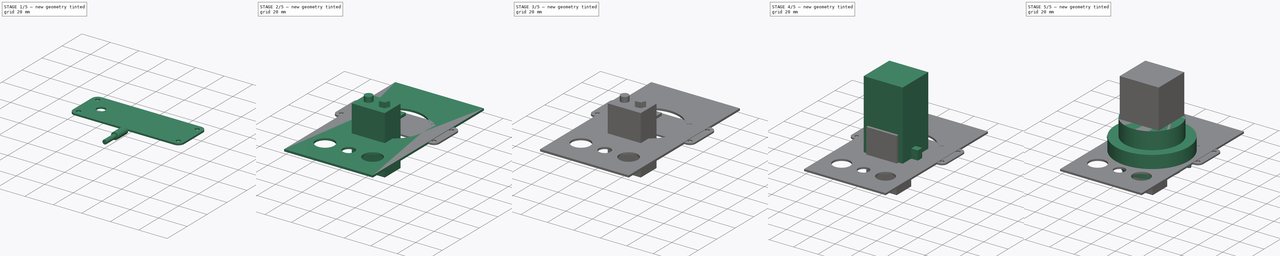
[diagram: build sequence overview — one tinted view per stage of 5, left to right]
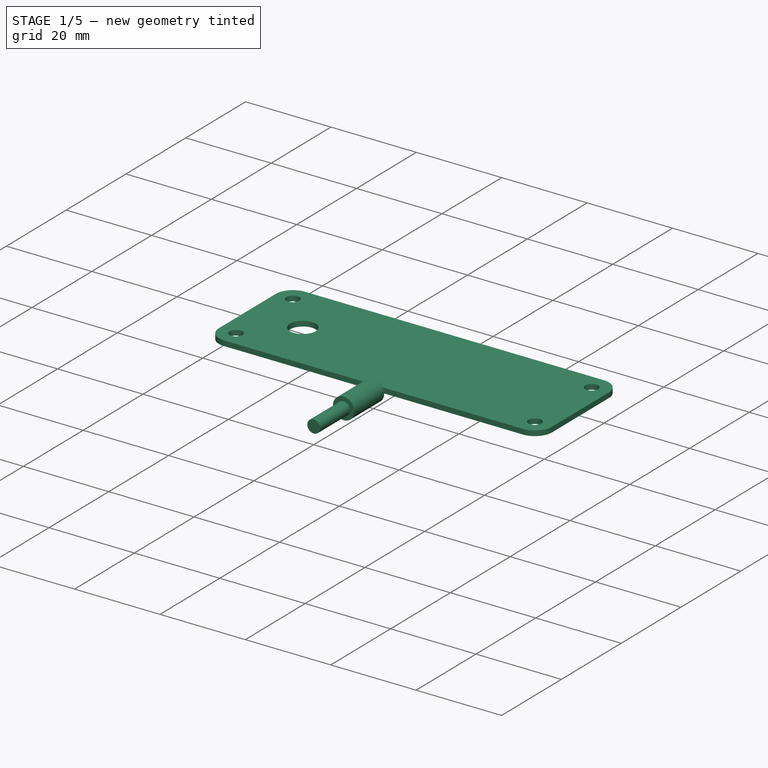
[diagram: stage 1 of 5 — iso view after this stage's code; geometry added in this stage tinted green]
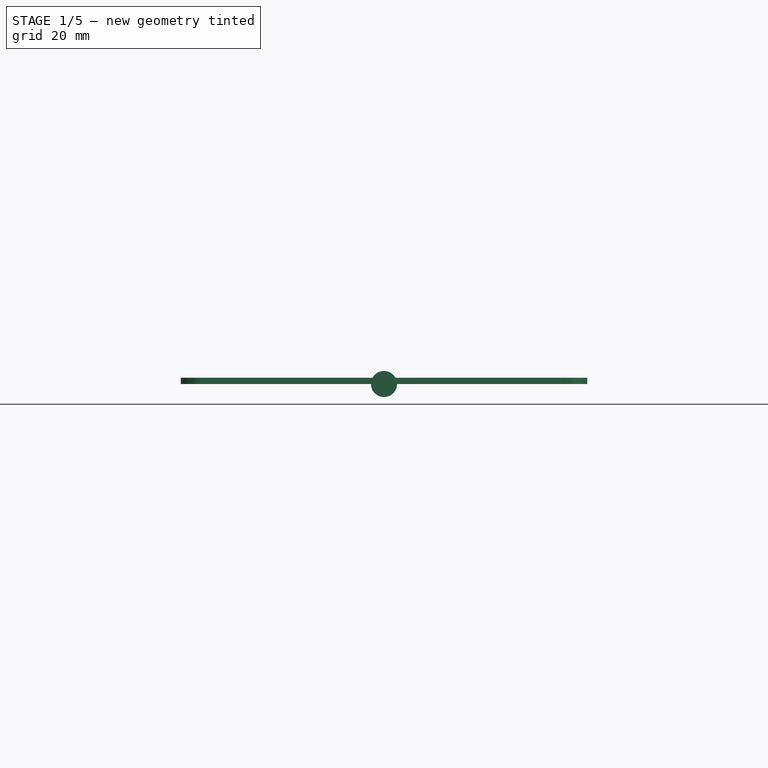
[diagram: stage 1 of 5 — front view after this stage's code; geometry added in this stage tinted green]
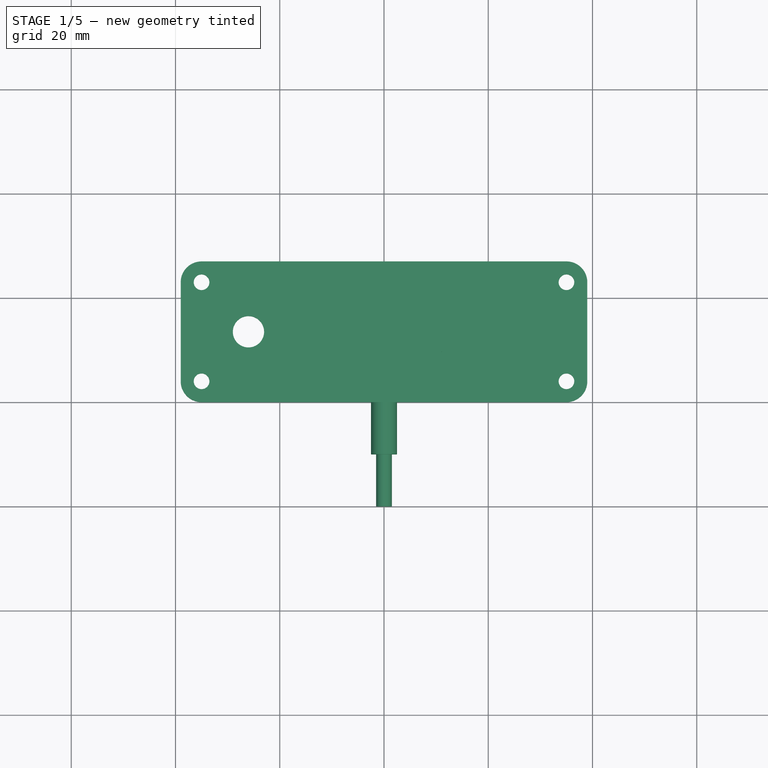
[diagram: stage 1 of 5 — top view after this stage's code; geometry added in this stage tinted green]
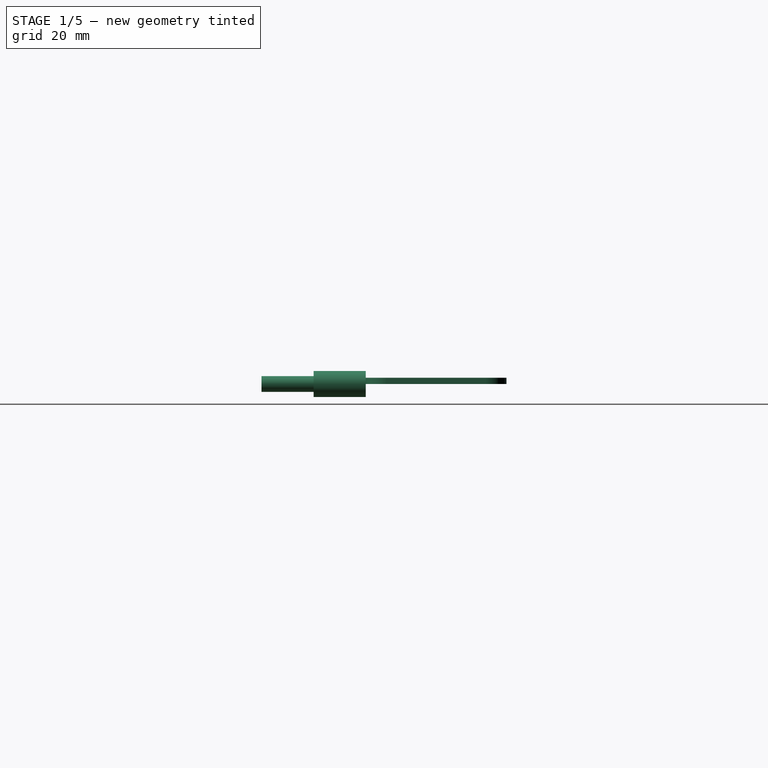
[diagram: stage 1 of 5 — right view after this stage's code; geometry added in this stage tinted green]
FCSTD DOCUMENT  (FreeCAD 0.20R29177 (Git))
Label: Couvercle2
License: All rights reserved
LicenseURL: http://en.wikipedia.org/wiki/All_rights_reserved
objects: Sketcher::SketchObject×37, PartDesign::Pad×33, PartDesign::Body×14, Part::Feature×14, PartDesign::Pocket×4, App::Part×1
note: 139 computed .brp shape members not serialized (recipe doc carries the construction recipe); baked Part::Feature solids carry a one-line shape summary decoded from their .brp

FEATURE [PartDesign::Body] Body013  label="Pile9V"
  Group = -> [Sketch036,Pad035,Sketch037,Pad036]
  Origin = -> Origin013
  Placement = pos=(2,8.18251,106.773) rot=(0.707107,0,0.707107;3.14159rad)
  Tip = -> Pad036
FEATURE [Part::Feature] Part__Feature  label="H_F_Fr_1"
  Placement = pos=(9.02815,16.7349,21.5766) rot=(0,0,1;0rad)
  shape: bbox 30.9 x 12.5 x 6.101 mm, 50 faces (baked)
FEATURE [Part::Feature] Part__Feature001  label="I_F_Fr_1"
  Placement = pos=(9.02815,16.7349,21.5766) rot=(0,0,1;0rad)
  shape: bbox 14.89 x 6.5 x 6.1 mm, 47 faces (baked)
FEATURE [Part::Feature] Part__Feature002  label="H_F_Ba_1"
  Placement = pos=(9.02815,16.7349,21.5766) rot=(0,1,0;3.14159rad)
  shape: bbox 30.9 x 13.58 x 4.4 mm, 62 faces (baked)
FEATURE [Part::Feature] Part__Feature003  label="I_F_Fr_002"
  Placement = pos=(9.02815,16.7349,15.4766) rot=(0,0,1;0rad)
  shape: bbox 14.89 x 6.5 x 6.1 mm, 47 faces (baked)
FEATURE [Part::Feature] Part__Feature004  label="Connector_1"
  Placement = pos=(15.0287,18.2349,17.1766) rot=(0.707107,0.707107,0;3.14159rad)
  shape: bbox 1.475 x 1.475 x 5 mm, 14 faces (baked)
FEATURE [Part::Feature] Part__Feature005  label="Connector_002"
  Placement = pos=(12.0287,18.2349,17.1766) rot=(0.707107,0.707107,0;3.14159rad)
  shape: bbox 1.475 x 1.475 x 5 mm, 14 faces (baked)
FEATURE [Part::Feature] Part__Feature006  label="Connector_003"
  Placement = pos=(9.02865,18.2349,17.1766) rot=(0.707107,0.707107,0;3.14159rad)
  shape: bbox 1.475 x 1.475 x 5 mm, 14 faces (baked)
FEATURE [Part::Feature] Part__Feature007  label="Connector_004"
  Placement = pos=(6.02865,18.2349,17.1766) rot=(0.707107,0.707107,0;3.14159rad)
  shape: bbox 1.475 x 1.475 x 5 mm, 14 faces (baked)
FEATURE [Part::Feature] Part__Feature008  label="Connector_005"
  Placement = pos=(3.02865,18.2349,17.1766) rot=(0.707107,0.707107,0;3.14159rad)
  shape: bbox 1.475 x 1.475 x 5 mm, 14 faces (baked)
FEATURE [Part::Feature] Part__Feature009  label="Connector_006"
  Placement = pos=(13.5287,15.2349,17.1766) rot=(0.707107,-0.707107,0;3.14159rad)
  shape: bbox 1.475 x 1.475 x 5 mm, 14 faces (baked)
FEATURE [Part::Feature] Part__Feature010  label="Connector_007"
  Placement = pos=(10.5287,15.2349,17.1766) rot=(0.707107,-0.707107,0;3.14159rad)
  shape: bbox 1.475 x 1.475 x 5 mm, 14 faces (baked)
FEATURE [Part::Feature] Part__Feature011  label="Connector_008"
  Placement = pos=(7.52865,15.2349,17.1766) rot=(0.707107,-0.707107,0;3.14159rad)
  shape: bbox 1.475 x 1.475 x 5 mm, 14 faces (baked)
FEATURE [Part::Feature] Part__Feature012  label="Connector_009"
  Placement = pos=(4.52865,15.2349,17.1766) rot=(0.707107,-0.707107,0;3.14159rad)
  shape: bbox 1.475 x 1.475 x 5 mm, 14 faces (baked)
FEATURE [App::Part] CONNECTOR_DB_9  label="CONNECTOR DB_9"
  Group = -> [Part__Feature,Part__Feature001,Part__Feature002,Part__Feature003,Part__Feature004,Part__Feature005,Part__Feature006,Part__Feature007,Part__Feature008,Part__Feature009,Part__Feature010,Part__Feature011,Part__Feature012]
  Origin = -> Origin014
  Placement = pos=(-9,30,19.5) rot=(-1,0,0;3.14159rad)
FEATURE [Sketcher::SketchObject] Sketch038
  FullyConstrained = true
  MapMode = 5
  Placement = pos=(0,0,0) rot=(1,0,0;1.5708rad)
  Support = -> [XZ_Plane015]
  sketch-geometry (1):
    g0: Circle CenterX=0 CenterY=0 CenterZ=0 NormalX=0 NormalY=0 NormalZ=1 AngleXU=0 Radius=2.5
  constraints (2):
    c: Coincident(g0,g-1)
    c: Diameter(g0) = 5
FEATURE [PartDesign::Pad] Pad037
  Direction = (0,-1,2e-16)
  Length = 10
  Length2 = 10
  Placement = pos=(0,0,0) rot=(1,0,0;1.5708rad)
  Profile = -> Sketch038
  ReferenceAxis = -> Sketch038 [N_Axis]
  Type = 0
FEATURE [Sketcher::SketchObject] Sketch039
  FullyConstrained = true
  MapMode = 5
  Placement = pos=(0,-10,4.4e-15) rot=(1,0,0;1.5708rad)
  Support = -> [Pad037]
  sketch-geometry (1):
    g0: Circle CenterX=0 CenterY=0 CenterZ=0 NormalX=0 NormalY=0 NormalZ=1 AngleXU=0 Radius=1.5
  constraints (2):
    c: Coincident(g0,g-1)
    c: Diameter(g0) = 3
FEATURE [PartDesign::Pad] Pad038
  BaseFeature = -> Pad037
  Direction = (0,-1,2e-16)
  Length = 10
  Length2 = 10
  Placement = pos=(0,0,0) rot=(1,0,0;1.5708rad)
  Profile = -> Sketch039
  ReferenceAxis = -> Sketch039 [N_Axis]
  Type = 0
FEATURE [PartDesign::Body] Body014  label="Bouton2Pos003"
  Group = -> [Sketch038,Pad037,Sketch039,Pad038,Sketch040,Pad039,Sketch041,Pad040]
  Origin = -> Origin015
  Tip = -> Pad040
FEATURE [Sketcher::SketchObject] Sketch042
  FullyConstrained = true
  MapMode = 5
  Support = -> [XY_Plane016]
  sketch-geometry (8):
    g0: LineSegment StartX=-35 StartY=27 StartZ=0 EndX=35 EndY=27 EndZ=0
    g1: LineSegment StartX=35 StartY=0 StartZ=0 EndX=-35 EndY=0 EndZ=0
    g2: LineSegment StartX=38.9998 StartY=23.0002 StartZ=0 EndX=38.9998 EndY=4.00016 EndZ=0
    g3: LineSegment StartX=-39.0002 StartY=23.0002 StartZ=0 EndX=-39.0002 EndY=4.00016 EndZ=0
    g4: ArcOfCircle CenterX=-35.0002 CenterY=23 CenterZ=0 NormalX=0 NormalY=0 NormalZ=1 AngleXU=0 Radius=4 StartAngle=1.57076 EndAngle=3.14155
    g5: ArcOfCircle CenterX=34.9998 CenterY=23 CenterZ=0 NormalX=0 NormalY=0 NormalZ=1 AngleXU=0 Radius=4 StartAngle=3.975e-05 EndAngle=1.57076
    g6: ArcOfCircle CenterX=34.9998 CenterY=4 CenterZ=0 NormalX=0 NormalY=0 NormalZ=1 AngleXU=0 Radius=4 StartAngle=4.71243 EndAngle=6.28323
    g7: ArcOfCircle CenterX=-35.0002 CenterY=4 CenterZ=0 NormalX=0 NormalY=0 NormalZ=1 AngleXU=0 Radius=4 StartAngle=3.14155 EndAngle=4.71243
  constraints (28):
    c: Horizontal(g0)
    c: PointOnObject(g1,g-1)
    c: PointOnObject(g1,g-1)
    c: Vertical(g2)
    c: Vertical(g3)
    c: Coincident(g4,g3)
    c: Coincident(g4,g0)
    c: Coincident(g5,g0)
    c: Coincident(g5,g2)
    c: Coincident(g6,g2)
    c: Coincident(g6,g1)
    c: Coincident(g7,g3)
    c: Coincident(g7,g1)
    c: DistanceX(g3,g4) = 4
    c: DistanceX(g3,g7) = 4
    c: DistanceY(g4,g0) = 4
    c: DistanceY(g1,g7) = 4
    c: DistanceX(g0,g0) = 70
    c: DistanceX(g1,g1) = 70
    c: DistanceY(g2,g2) = 19
    c: DistanceY(g5,g0) = 4
    c: DistanceY(g1,g6) = 4
    c: DistanceY(g6,g5) = 19
    c: DistanceX(g7,g6) = 70
    c: DistanceX(g5,g2) = 4
    c: DistanceX(g6,g2) = 4
    c: DistanceX(g1,g-1) = 35
    c: DistanceX(g7,g1) = 0.000159
FEATURE [PartDesign::Pad] Pad041
  Direction = (0,0,1)
  Length = 1.2
  Length2 = 10
  Profile = -> Sketch042
  ReferenceAxis = -> Sketch042 [N_Axis]
  Type = 0
FEATURE [Sketcher::SketchObject] Sketch043
  FullyConstrained = true
  MapMode = 5
  Support = -> [XY_Plane017]
  sketch-geometry (8):
    g0: LineSegment StartX=-35 StartY=27 StartZ=0 EndX=35 EndY=27 EndZ=0
    g1: LineSegment StartX=35 StartY=0 StartZ=0 EndX=-35 EndY=0 EndZ=0
    g2: LineSegment StartX=38.9998 StartY=23.0002 StartZ=0 EndX=38.9998 EndY=4.00016 EndZ=0
    g3: LineSegment StartX=-39.0002 StartY=23.0002 StartZ=0 EndX=-39.0002 EndY=4.00016 EndZ=0
    g4: ArcOfCircle CenterX=-35.0002 CenterY=23 CenterZ=0 NormalX=0 NormalY=0 NormalZ=1 AngleXU=0 Radius=4 StartAngle=1.57076 EndAngle=3.14155
    g5: ArcOfCircle CenterX=34.9998 CenterY=23 CenterZ=0 NormalX=0 NormalY=0 NormalZ=1 AngleXU=0 Radius=4 StartAngle=3.975e-05 EndAngle=1.57076
    g6: ArcOfCircle CenterX=34.9998 CenterY=4 CenterZ=0 NormalX=0 NormalY=0 NormalZ=1 AngleXU=0 Radius=4 StartAngle=4.71243 EndAngle=6.28323
    g7: ArcOfCircle CenterX=-35.0002 CenterY=4 CenterZ=0 NormalX=0 NormalY=0 NormalZ=1 AngleXU=0 Radius=4 StartAngle=3.14155 EndAngle=4.71243
  constraints (28):
    c: Horizontal(g0)
    c: PointOnObject(g1,g-1)
    c: PointOnObject(g1,g-1)
    c: Vertical(g2)
    c: Vertical(g3)
    c: Coincident(g4,g3)
    c: Coincident(g4,g0)
    c: Coincident(g5,g0)
    c: Coincident(g5,g2)
    c: Coincident(g6,g2)
    c: Coincident(g6,g1)
    c: Coincident(g7,g3)
    c: Coincident(g7,g1)
    c: DistanceX(g3,g4) = 4
    c: DistanceX(g3,g7) = 4
    c: DistanceY(g4,g0) = 4
    c: DistanceY(g1,g7) = 4
    c: DistanceX(g0,g0) = 70
    c: DistanceX(g1,g1) = 70
    c: DistanceY(g2,g2) = 19
    c: DistanceY(g5,g0) = 4
    c: DistanceY(g1,g6) = 4
    c: DistanceY(g6,g5) = 19
    c: DistanceX(g7,g6) = 70
    c: DistanceX(g5,g2) = 4
    c: DistanceX(g6,g2) = 4
    c: DistanceX(g1,g-1) = 35
    c: DistanceX(g7,g1) = 0.000159
FEATURE [PartDesign::Pad] Pad042
  Direction = (0,0,1)
  Length = 1.2
  Length2 = 10
  Profile = -> Sketch043
  ReferenceAxis = -> Sketch043 [N_Axis]
  Type = 0
FEATURE [Sketcher::SketchObject] Sketch044
  FullyConstrained = true
  MapMode = 5
  Placement = pos=(0,0,1.2) rot=(0,0,1;0rad)
  Support = -> [Pad041]
  sketch-geometry (4):
    g0: Circle CenterX=-35 CenterY=23 CenterZ=0 NormalX=0 NormalY=0 NormalZ=1 AngleXU=0 Radius=1.5
    g1: Circle CenterX=35 CenterY=23 CenterZ=0 NormalX=0 NormalY=0 NormalZ=1 AngleXU=0 Radius=1.5
    g2: Circle CenterX=35 CenterY=4 CenterZ=0 NormalX=0 NormalY=0 NormalZ=1 AngleXU=0 Radius=1.5
    g3: Circle CenterX=-35 CenterY=4 CenterZ=0 NormalX=0 NormalY=0 NormalZ=1 AngleXU=0 Radius=1.5
  constraints (12):
    c: DistanceX(g3,g-1) = 35
    c: DistanceX(g-1,g2) = 35
    c: DistanceX(g-1,g1) = 35
    c: DistanceX(g0,g-1) = 35
    c: DistanceY(g3,g0) = 19
    c: DistanceY(g2,g1) = 19
    c: DistanceY(g-1,g2) = 4
    c: DistanceY(g-1,g3) = 4
    c: Diameter(g0) = 3
    c: Diameter(g1) = 3
    c: Diameter(g2) = 3
    c: Diameter(g3) = 3
FEATURE [PartDesign::Pocket] Pocket001
  BaseFeature = -> Pad041
  Direction = (0,0,-1)
  Length = 5
  Length2 = 5
  Profile = -> Sketch044
  ReferenceAxis = -> Sketch044 [N_Axis]
  Type = 0
FEATURE [Sketcher::SketchObject] Sketch045
  FullyConstrained = true
  MapMode = 5
  Placement = pos=(0,0,1.2) rot=(0,0,1;0rad)
  Support = -> [Pad042]
  sketch-geometry (11):
    g0: Circle CenterX=-35 CenterY=23 CenterZ=0 NormalX=0 NormalY=0 NormalZ=1 AngleXU=0 Radius=1.5
    g1: Circle CenterX=35 CenterY=23 CenterZ=0 NormalX=0 NormalY=0 NormalZ=1 AngleXU=0 Radius=1.5
    g2: Circle CenterX=35 CenterY=4 CenterZ=0 NormalX=0 NormalY=0 NormalZ=1 AngleXU=0 Radius=1.5
    g3: Circle CenterX=-35 CenterY=4 CenterZ=0 NormalX=0 NormalY=0 NormalZ=1 AngleXU=0 Radius=1.5
    g4: LineSegment StartX=-8.5 StartY=19 StartZ=0 EndX=8.5 EndY=19 EndZ=0
    g5: LineSegment StartX=-11.5 StartY=8 StartZ=0 EndX=11.5 EndY=8 EndZ=0
    g6: LineSegment StartX=8.5 StartY=19 StartZ=0 EndX=11.5 EndY=8 EndZ=0
    g7: LineSegment StartX=-11.5 StartY=8 StartZ=0 EndX=-8.5 EndY=19 EndZ=0
    g8: Circle CenterX=-12.5 CenterY=13.5 CenterZ=0 NormalX=0 NormalY=0 NormalZ=1 AngleXU=0 Radius=1.5
    g9: Circle CenterX=12.5 CenterY=13.5 CenterZ=0 NormalX=0 NormalY=0 NormalZ=1 AngleXU=0 Radius=1.5
    g10: Circle CenterX=-26 CenterY=13.5 CenterZ=0 NormalX=0 NormalY=0 NormalZ=1 AngleXU=0 Radius=4
  constraints (33):
    c: Diameter(g0) = 3
    c: Diameter(g1) = 3
    c: Diameter(g2) = 3
    c: Diameter(g3) = 3
    c: DistanceX(g3,g-1) = 35
    c: DistanceX(g-1,g2) = 35
    c: DistanceX(g-1,g1) = 35
    c: DistanceX(g0,g-1) = 35
    c: DistanceY(g3,g0) = 19
    c: DistanceY(g2,g1) = 19
    c: DistanceY(g-1,g3) = 4
    c: DistanceY(g-1,g2) = 4
    c: Horizontal(g4)
    c: Horizontal(g5)
    c: Coincident(g6,g4)
    c: Coincident(g6,g5)
    c: Coincident(g7,g5)
    c: Coincident(g7,g4)
    c: DistanceX(g4,g4) = 17
    c: DistanceX(g4,g-1) = 8.5
    c: DistanceX(g5,g5) = 23
    c: DistanceY(g5,g4) = 11
    c: DistanceY(g-1,g5) = 8
    c: DistanceX(g5,g4) = 3
    c: Diameter(g8) = 3
    c: Diameter(g9) = 3
    c: DistanceY(g-1,g8) = 13.5
    c: DistanceY(g-1,g9) = 13.5
    c: DistanceX(g8,g-1) = 12.5
    c: DistanceX(g-1,g9) = 12.5
    c: DistanceY(g-1,g10) = 13.5
    c: Diameter(g10) = 8
    c: DistanceX(g10,g-1) = 26
FEATURE [PartDesign::Pocket] Pocket002
  BaseFeature = -> Pad042
  Direction = (0,0,-1)
  Length = 5
  Length2 = 5
  Profile = -> Sketch045
  ReferenceAxis = -> Sketch045 [N_Axis]
  Type = 0
FEATURE [PartDesign::Body] Body016  label="FaceTop"
  Group = -> [Sketch043,Pad042,Sketch045,Pocket002]
  Origin = -> Origin017
  Placement = pos=(0,0,-1) rot=(0,0,1;0rad)
  Tip = -> Pocket002
FEATURE [Sketcher::SketchObject] Sketch046
  FullyConstrained = true
  MapMode = 5
  Placement = pos=(0,0,1.2) rot=(0,0,1;0rad)
  Support = -> [Pocket001]
  sketch-geometry (1):
    g0: Circle CenterX=-26 CenterY=13.5 CenterZ=0 NormalX=0 NormalY=0 NormalZ=1 AngleXU=0 Radius=3
  constraints (3):
    c: Diameter(g0) = 6
    c: DistanceX(g0,g-1) = 26
    c: DistanceY(g-1,g0) = 13.5
FEATURE [PartDesign::Pocket] Pocket003
  BaseFeature = -> Pocket001
  Direction = (0,0,-1)
  Length = 5
  Length2 = 5
  Profile = -> Sketch046
  ReferenceAxis = -> Sketch046 [N_Axis]
  Type = 0
FEATURE [PartDesign::Body] Body015  label="FaceBottom"
  Group = -> [Sketch042,Pad041,Sketch044,Pocket001,Sketch046,Pocket003]
  Origin = -> Origin016
  Placement = pos=(0,0,120) rot=(0,0,1;0rad)
  Tip = -> Pocket003
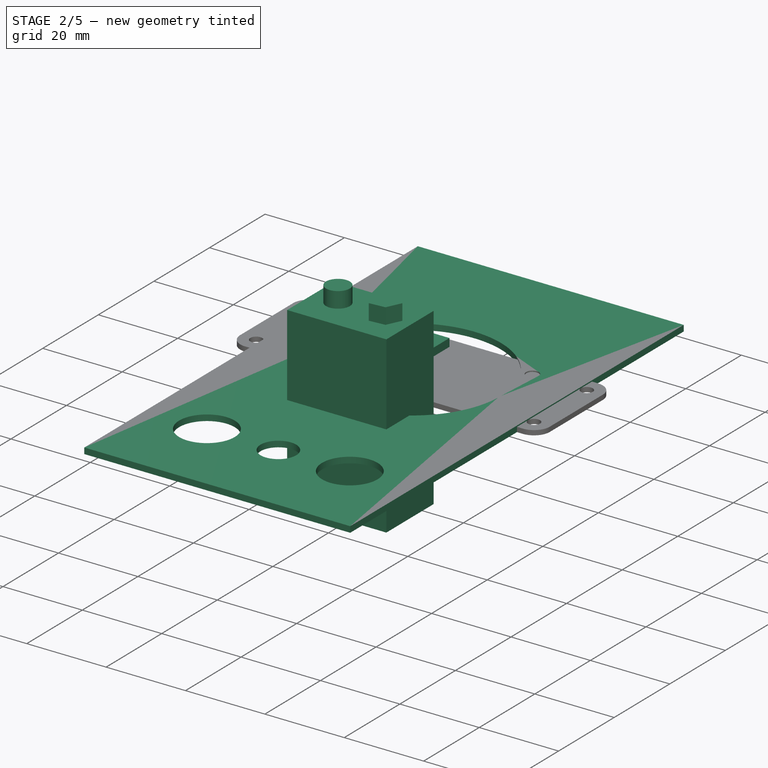
[diagram: stage 2 of 5 — iso view after this stage's code; geometry added in this stage tinted green]
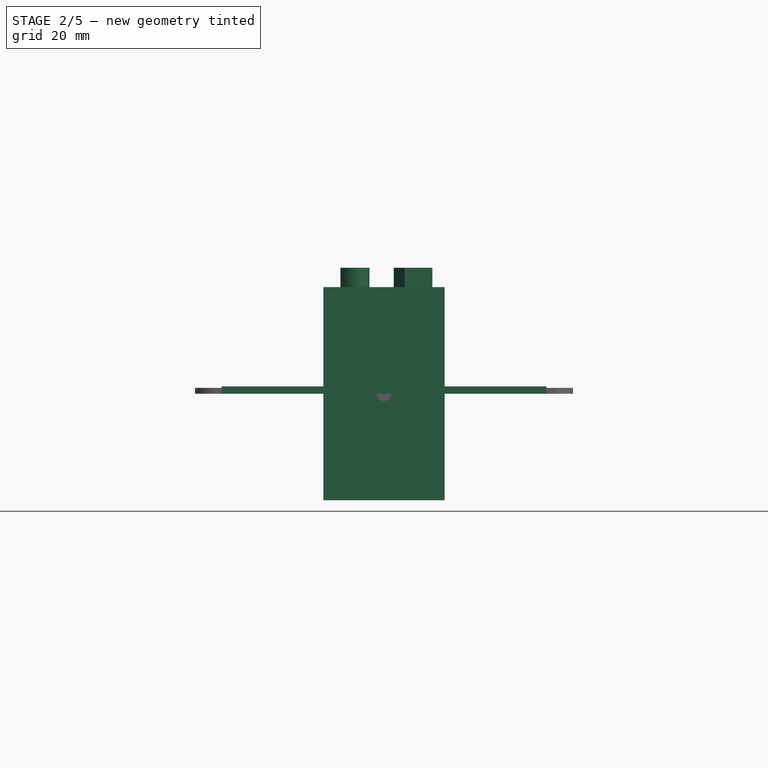
[diagram: stage 2 of 5 — front view after this stage's code; geometry added in this stage tinted green]
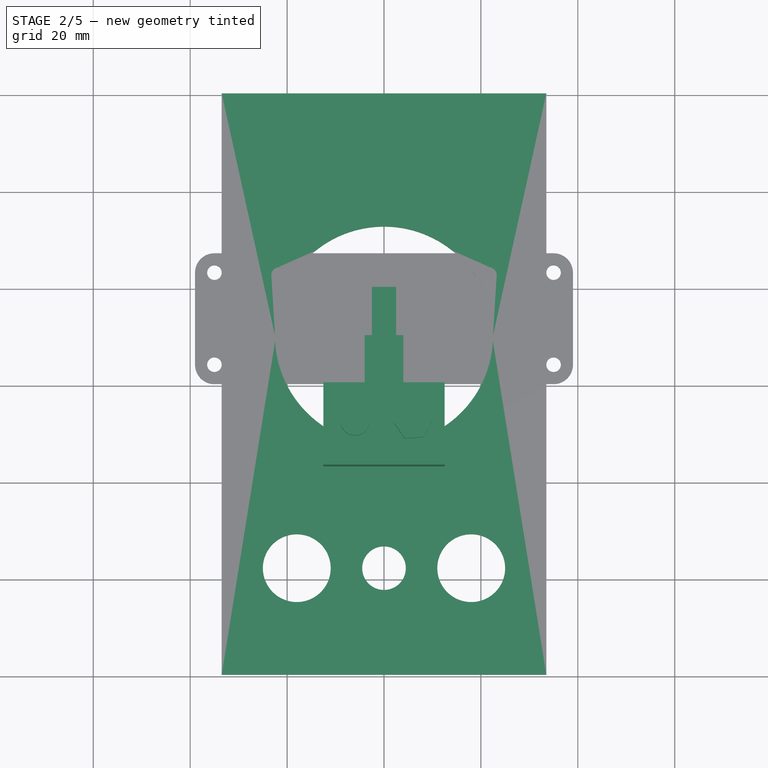
[diagram: stage 2 of 5 — top view after this stage's code; geometry added in this stage tinted green]
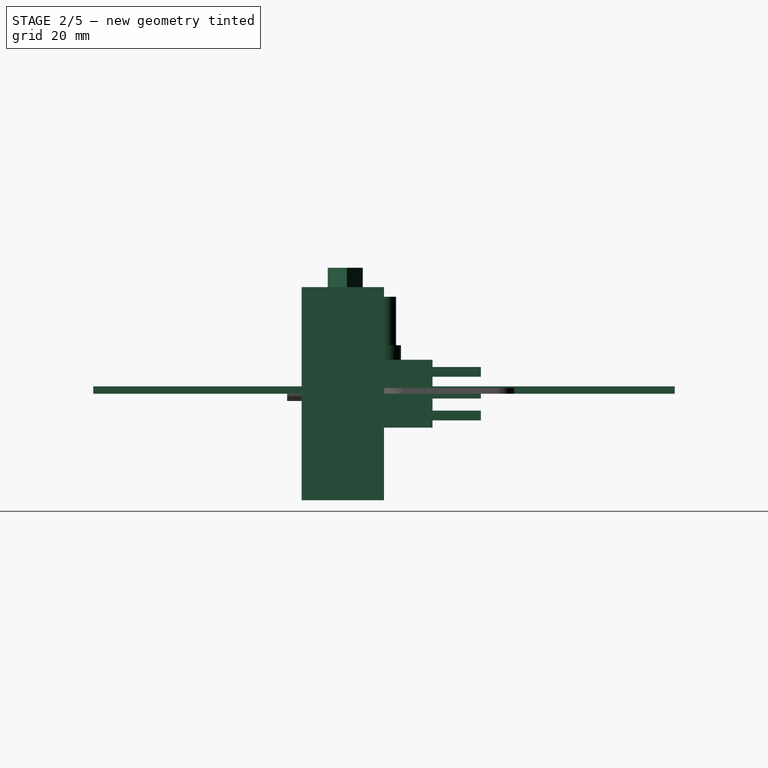
[diagram: stage 2 of 5 — right view after this stage's code; geometry added in this stage tinted green]
FEATURE [Sketcher::SketchObject] Sketch
  FullyConstrained = true
  MapMode = 5
  Support = -> [XY_Plane]
  sketch-geometry (4):
    g0: LineSegment StartX=-33.5 StartY=60 StartZ=0 EndX=33.5 EndY=60 EndZ=0
    g1: LineSegment StartX=33.5 StartY=60 StartZ=0 EndX=33.5 EndY=-60 EndZ=0
    g2: LineSegment StartX=33.5 StartY=-60 StartZ=0 EndX=-33.5 EndY=-60 EndZ=0
    g3: LineSegment StartX=-33.5 StartY=-60 StartZ=0 EndX=-33.5 EndY=60 EndZ=0
  constraints (12):
    c: Coincident(g0,g1)
    c: Coincident(g1,g2)
    c: Coincident(g2,g3)
    c: Coincident(g3,g0)
    c: Horizontal(g0)
    c: Horizontal(g2)
    c: Vertical(g1)
    c: Vertical(g3)
    c: DistanceX(g0,g0) = 67
    c: DistanceY(g3,g3) = 120
    c: DistanceY(g-1,g0) = 60
    c: DistanceX(g0,g-1) = 33.5
FEATURE [PartDesign::Pad] Pad
  Direction = (0,0,1)
  Length = 1.5
  Length2 = 10
  Profile = -> Sketch
  ReferenceAxis = -> Sketch [N_Axis]
  Type = 0
FEATURE [PartDesign::Body] Body011  label="Bouton3PosMode"
  Group = -> [Sketch029,Pad029,Sketch030,Pad030,Sketch031,Pad031]
  Origin = -> Origin011
  Placement = pos=(-26,13.5,1) rot=(0,1,0;3.14159rad)
  Tip = -> Pad031
FEATURE [Sketcher::SketchObject] Sketch032
  FullyConstrained = true
  MapMode = 5
  Support = -> [XY_Plane012]
  sketch-geometry (1):
    g0: Circle CenterX=0 CenterY=0 CenterZ=0 NormalX=0 NormalY=0 NormalZ=1 AngleXU=0 Radius=3.5
  constraints (2):
    c: Coincident(g0,g-1)
    c: Diameter(g0) = 7
FEATURE [PartDesign::Pad] Pad032
  Direction = (0,0,1)
  Length = 10
  Length2 = 10
  Profile = -> Sketch032
  ReferenceAxis = -> Sketch032 [N_Axis]
  Type = 0
FEATURE [Sketcher::SketchObject] Sketch033
  FullyConstrained = true
  MapMode = 5
  Placement = pos=(0,0,10) rot=(0,0,1;0rad)
  Support = -> [Pad032]
  sketch-geometry (1):
    g0: Circle CenterX=0 CenterY=0 CenterZ=0 NormalX=0 NormalY=0 NormalZ=1 AngleXU=0 Radius=2.5
  constraints (2):
    c: Coincident(g0,g-1)
    c: Diameter(g0) = 5
FEATURE [PartDesign::Pad] Pad033
  BaseFeature = -> Pad032
  Direction = (0,0,1)
  Length = 10
  Length2 = 10
  Profile = -> Sketch033
  ReferenceAxis = -> Sketch033 [N_Axis]
  Type = 0
FEATURE [PartDesign::Body] Body012  label="Bouton3Pos002"
  Group = -> [Sketch032,Pad032,Sketch033,Pad033,Sketch034,Pad034]
  Origin = -> Origin012
  Tip = -> Pad034
FEATURE [Sketcher::SketchObject] Sketch035
  FullyConstrained = true
  MapMode = 5
  Placement = pos=(0,0,1.5) rot=(0,0,1;0rad)
  Support = -> [Pad]
  sketch-geometry (7):
    g0: Circle CenterX=18 CenterY=-38 CenterZ=0 NormalX=0 NormalY=0 NormalZ=1 AngleXU=0 Radius=7
    g1: Circle CenterX=-18 CenterY=-38 CenterZ=0 NormalX=0 NormalY=0 NormalZ=1 AngleXU=0 Radius=7
    g2: Circle CenterX=0 CenterY=-15 CenterZ=0 NormalX=0 NormalY=0 NormalZ=1 AngleXU=0 Radius=1.6
    g3: Circle CenterX=-21.65 CenterY=22.5 CenterZ=0 NormalX=0 NormalY=0 NormalZ=1 AngleXU=0 Radius=1.6
    g4: Circle CenterX=21.65 CenterY=22.5 CenterZ=0 NormalX=0 NormalY=0 NormalZ=1 AngleXU=0 Radius=1.6
    g5: Circle CenterX=0 CenterY=-38 CenterZ=0 NormalX=0 NormalY=0 NormalZ=1 AngleXU=0 Radius=4.5
    g6: Circle CenterX=0 CenterY=10 CenterZ=0 NormalX=0 NormalY=0 NormalZ=1 AngleXU=0 Radius=22.5
  constraints (21):
    c: Diameter(g0) = 14
    c: DistanceX(g-1,g0) = 18
    c: DistanceY(g0,g-1) = 38
    c: DistanceY(g1,g-1) = 38
    c: DistanceX(g1,g-1) = 18
    c: Diameter(g1) = 14
    c: PointOnObject(g2,g-2)
    c: Diameter(g2) = 3.2
    c: Diameter(g4) = 3.2
    c: Diameter(g3) = 3.2
    c: PointOnObject(g5,g-2)
    c: Diameter(g5) = 9
    c: PointOnObject(g6,g-2)
    c: Diameter(g6) = 45
    c: DistanceY(g-1,g6) = 10
    c: DistanceX(g3,g4) = 43.3
    c: DistanceX(g3,g-1) = 21.65
    c: DistanceY(g5,g-1) = 38
    c: DistanceY(g6,g3) = 12.5
    c: DistanceY(g6,g4) = 12.5
    c: DistanceY(g2,g6) = 25
FEATURE [PartDesign::Pocket] Pocket
  BaseFeature = -> Pad
  Direction = (0,0,-1)
  Length = 5
  Length2 = 5
  Profile = -> Sketch035
  ReferenceAxis = -> Sketch035 [N_Axis]
  Type = 0
FEATURE [PartDesign::Body] Body  label="Plaque"
  Group = -> [Sketch,Pad,Sketch035,Pocket]
  Origin = -> Origin
  Placement = pos=(0,4.5,60) rot=(1,0,0;1.5708rad)
  Tip = -> Pocket
FEATURE [Sketcher::SketchObject] Sketch036
  FullyConstrained = true
  MapMode = 5
  Placement = pos=(0,0,0) rot=(1,0,0;1.5708rad)
  Support = -> [XZ_Plane013]
  sketch-geometry (4):
    g0: LineSegment StartX=-12.5 StartY=22 StartZ=0 EndX=12.5 EndY=22 EndZ=0
    g1: LineSegment StartX=12.5 StartY=22 StartZ=0 EndX=12.5 EndY=-22 EndZ=0
    g2: LineSegment StartX=12.5 StartY=-22 StartZ=0 EndX=-12.5 EndY=-22 EndZ=0
    g3: LineSegment StartX=-12.5 StartY=-22 StartZ=0 EndX=-12.5 EndY=22 EndZ=0
  constraints (12):
    c: Coincident(g0,g1)
    c: Coincident(g1,g2)
    c: Coincident(g2,g3)
    c: Coincident(g3,g0)
    c: Horizontal(g0)
    c: Horizontal(g2)
    c: Vertical(g1)
    c: Vertical(g3)
    c: DistanceX(g0,g0) = 25
    c: DistanceY(g3,g3) = 44
    c: DistanceY(g2,g-1) = 22
    c: DistanceX(g2,g-1) = 12.5
FEATURE [PartDesign::Pad] Pad035
  Direction = (0,-1,2e-16)
  Length = 17
  Length2 = 10
  Placement = pos=(0,0,0) rot=(1,0,0;1.5708rad)
  Profile = -> Sketch036
  ReferenceAxis = -> Sketch036 [N_Axis]
  Type = 0
FEATURE [Sketcher::SketchObject] Sketch037
  FullyConstrained = false
  MapMode = 5
  Placement = pos=(0,1.46e-14,22) rot=(0,0,1;3.14159rad)
  Support = -> [Pad035]
  sketch-geometry (8):
    g0: Circle CenterX=6 CenterY=8 CenterZ=0 NormalX=0 NormalY=0 NormalZ=1 AngleXU=0 Radius=3
    g1: LineSegment StartX=-3.71952 StartY=4.71375 StartZ=0 EndX=-2.01379 EndY=8.33183 EndZ=0
    g2: LineSegment StartX=-2.01379 StartY=8.33183 StartZ=0 EndX=-4.29427 EndY=11.6181 EndZ=0
    g3: LineSegment StartX=-4.29427 StartY=11.6181 StartZ=0 EndX=-8.28048 EndY=11.2862 EndZ=0
    g4: LineSegment StartX=-8.28048 StartY=11.2862 StartZ=0 EndX=-9.98621 EndY=7.66817 EndZ=0
    g5: LineSegment StartX=-9.98621 StartY=7.66817 StartZ=0 EndX=-7.70573 EndY=4.38192 EndZ=0
    g6: LineSegment StartX=-7.70573 StartY=4.38192 StartZ=0 EndX=-3.71952 EndY=4.71375 EndZ=0
    g7: Circle CenterX=-6 CenterY=8 CenterZ=0 NormalX=0 NormalY=0 NormalZ=1 AngleXU=0 Radius=4
  constraints (19):
    c: Diameter(g0) = 6
    c: Coincident(g1,g2)
    c: Coincident(g2,g3)
    c: Coincident(g3,g4)
    c: Coincident(g4,g5)
    c: Coincident(g5,g6)
    c: Coincident(g6,g1)
    c: Equal(g1, g2-g6) x5
    c: PointOnObject(g1,g7)
    c: PointOnObject(g2,g7)
    c: PointOnObject(g3,g7)
    c: PointOnObject(g4,g7)
    c: PointOnObject(g5,g7)
    c: PointOnObject(g6,g7)
    c: Diameter(g7) = 8
    c: DistanceY(g-1,g7) = 8
    c: DistanceY(g-1,g0) = 8
    c: DistanceX(g7,g-1) = 6
    c: DistanceX(g-1,g0) = 6
FEATURE [PartDesign::Pad] Pad036
  BaseFeature = -> Pad035
  Direction = (0,2e-16,1)
  Length = 4
  Length2 = 10
  Placement = pos=(0,0,0) rot=(1,0,0;1.5708rad)
  Profile = -> Sketch037
  ReferenceAxis = -> Sketch037 [N_Axis]
  Type = 0
FEATURE [Sketcher::SketchObject] Sketch040
  FullyConstrained = true
  MapMode = 5
  Placement = pos=(0,0,0) rot=(-1,0,0;1.5708rad)
  Support = -> [Pad038]
  sketch-geometry (4):
    g0: LineSegment StartX=-4 StartY=7 StartZ=0 EndX=4 EndY=7 EndZ=0
    g1: LineSegment StartX=4 StartY=7 StartZ=0 EndX=4 EndY=-7 EndZ=0
    g2: LineSegment StartX=4 StartY=-7 StartZ=0 EndX=-4 EndY=-7 EndZ=0
    g3: LineSegment StartX=-4 StartY=-7 StartZ=0 EndX=-4 EndY=7 EndZ=0
  constraints (12):
    c: Coincident(g0,g1)
    c: Coincident(g1,g2)
    c: Coincident(g2,g3)
    c: Coincident(g3,g0)
    c: Horizontal(g0)
    c: Horizontal(g2)
    c: Vertical(g1)
    c: Vertical(g3)
    c: DistanceY(g1,g1) = 14
    c: DistanceX(g0,g0) = 8
    c: DistanceX(g0,g-1) = 4
    c: DistanceY(g-1,g0) = 7
FEATURE [PartDesign::Pad] Pad039
  BaseFeature = -> Pad038
  Direction = (0,1,-2e-16)
  Length = 10
  Length2 = 10
  Placement = pos=(0,0,0) rot=(1,0,0;1.5708rad)
  Profile = -> Sketch040
  ReferenceAxis = -> Sketch040 [N_Axis]
  Type = 0
FEATURE [Sketcher::SketchObject] Sketch041
  FullyConstrained = true
  MapMode = 5
  Placement = pos=(0,10,-4.4e-15) rot=(-1,0,0;1.5708rad)
  Support = -> [Pad039]
  sketch-geometry (12):
    g0: LineSegment StartX=-2.5 StartY=5.5 StartZ=0 EndX=2.5 EndY=5.5 EndZ=0
    g1: LineSegment StartX=2.5 StartY=5.5 StartZ=0 EndX=2.5 EndY=3.5 EndZ=0
    g2: LineSegment StartX=2.5 StartY=3.5 StartZ=0 EndX=-2.5 EndY=3.5 EndZ=0
    g3: LineSegment StartX=-2.5 StartY=3.5 StartZ=0 EndX=-2.5 EndY=5.5 EndZ=0
    g4: LineSegment StartX=-2.5 StartY=1 StartZ=0 EndX=2.5 EndY=1 EndZ=0
    g5: LineSegment StartX=2.5 StartY=1 StartZ=0 EndX=2.5 EndY=-1 EndZ=0
    g6: LineSegment StartX=2.5 StartY=-1 StartZ=0 EndX=-2.5 EndY=-1 EndZ=0
    g7: LineSegment StartX=-2.5 StartY=-1 StartZ=0 EndX=-2.5 EndY=1 EndZ=0
    g8: LineSegment StartX=-2.5 StartY=-3.5 StartZ=0 EndX=2.5 EndY=-3.5 EndZ=0
    g9: LineSegment StartX=2.5 StartY=-3.5 StartZ=0 EndX=2.5 EndY=-5.5 EndZ=0
    g10: LineSegment StartX=2.5 StartY=-5.5 StartZ=0 EndX=-2.5 EndY=-5.5 EndZ=0
    g11: LineSegment StartX=-2.5 StartY=-5.5 StartZ=0 EndX=-2.5 EndY=-3.5 EndZ=0
  constraints (36):
    c: Coincident(g0,g1)
    c: Coincident(g1,g2)
    c: Coincident(g2,g3)
    c: Coincident(g3,g0)
    c: Horizontal(g0)
    c: Horizontal(g2)
    c: Vertical(g1)
    c: Vertical(g3)
    c: Coincident(g4,g5)
    c: Coincident(g5,g6)
    c: Coincident(g6,g7)
    c: Coincident(g7,g4)
    c: Horizontal(g4)
    c: Horizontal(g6)
    c: Vertical(g5)
    c: Vertical(g7)
    c: Coincident(g8,g9)
    c: Coincident(g9,g10)
    c: Coincident(g10,g11)
    c: Coincident(g11,g8)
    c: Horizontal(g8)
    c: Horizontal(g10)
    c: Vertical(g9)
    c: Vertical(g11)
    c: DistanceX(g0,g0) = 5
    c: DistanceX(g4,g4) = 5
    c: DistanceX(g8,g8) = 5
    c: DistanceY(g1,g1) = 2
    c: DistanceY(g5,g5) = 2
    c: DistanceY(g9,g9) = 2
    c: DistanceX(g1,g4) = 0
    c: DistanceX(g5,g8) = 0
    c: DistanceY(g4,g1) = 2.5
    c: DistanceY(g8,g5) = 2.5
    c: DistanceY(g5,g-1) = 1
    c: DistanceX(g-1,g5) = 2.5
FEATURE [PartDesign::Pad] Pad040
  BaseFeature = -> Pad039
  Direction = (0,1,-2e-16)
  Length = 10
  Length2 = 10
  Placement = pos=(0,0,0) rot=(1,0,0;1.5708rad)
  Profile = -> Sketch041
  ReferenceAxis = -> Sketch041 [N_Axis]
  Type = 0
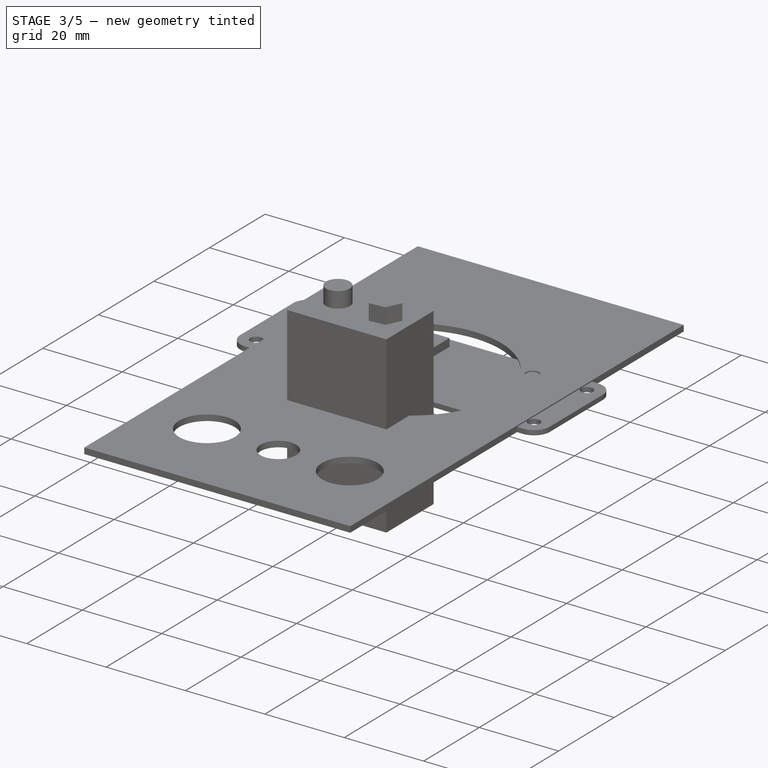
[diagram: stage 3 of 5 — iso view after this stage's code; geometry added in this stage tinted green]
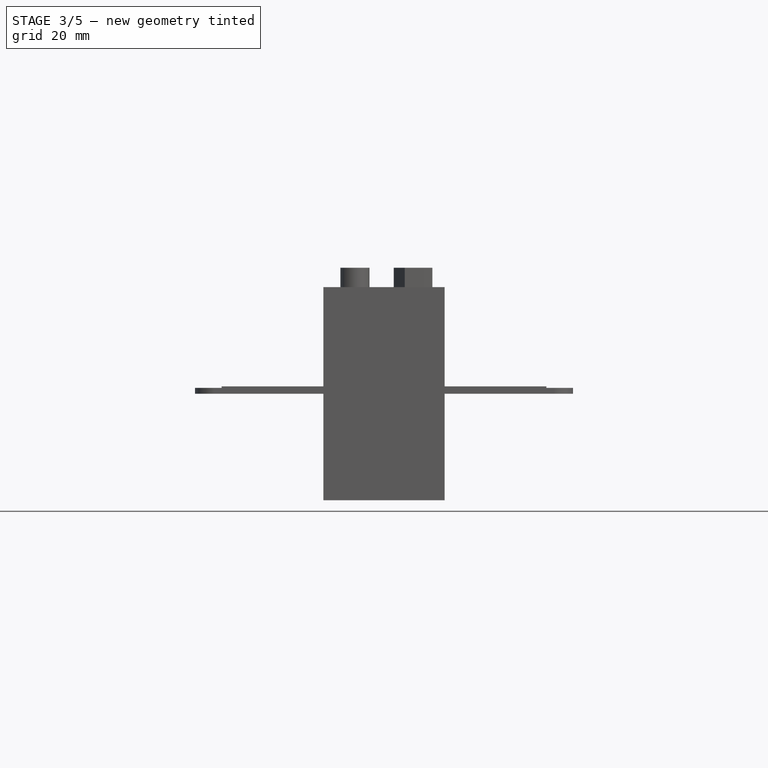
[diagram: stage 3 of 5 — front view after this stage's code; geometry added in this stage tinted green]
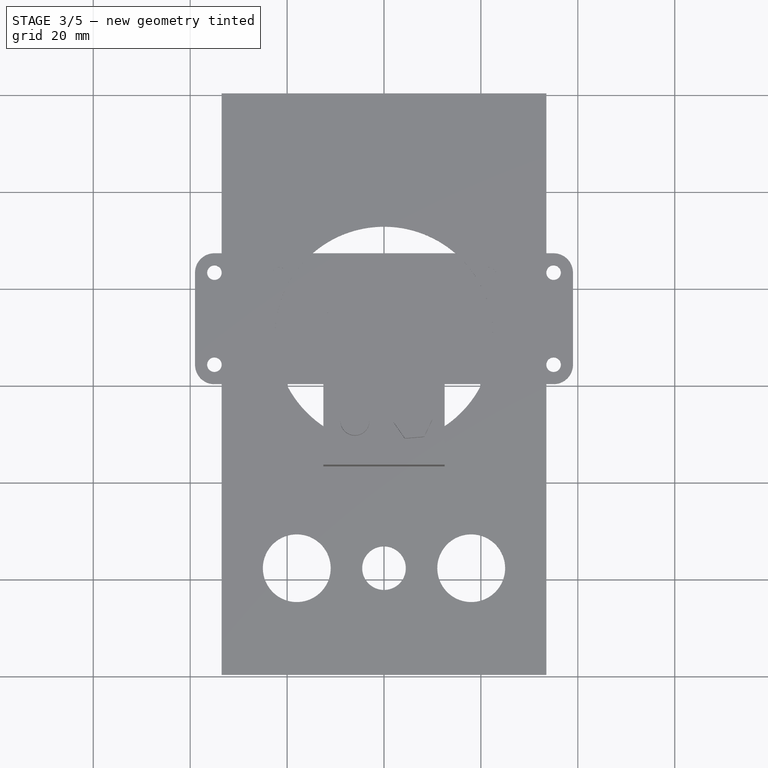
[diagram: stage 3 of 5 — top view after this stage's code; geometry added in this stage tinted green]
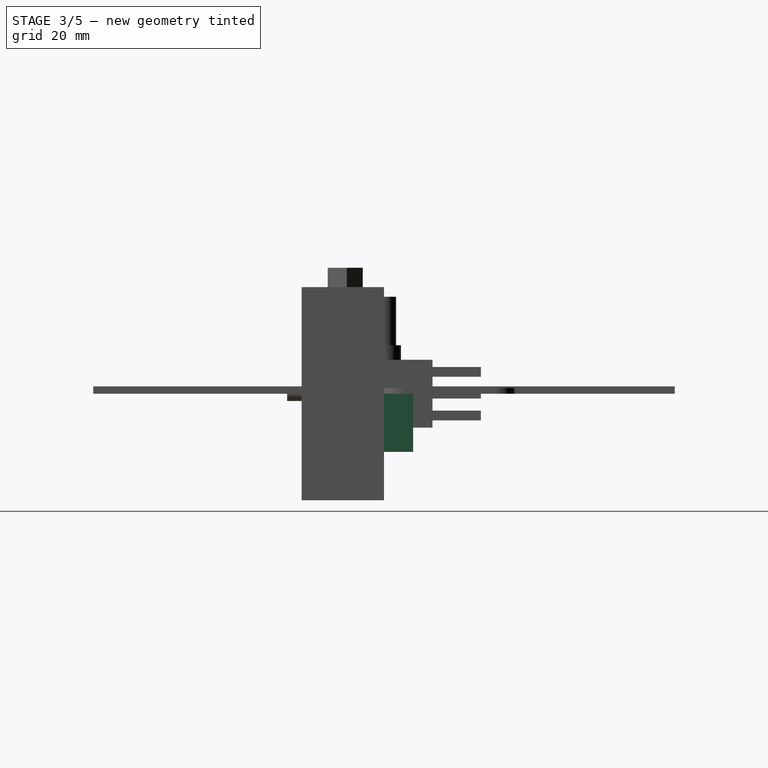
[diagram: stage 3 of 5 — right view after this stage's code; geometry added in this stage tinted green]
FEATURE [PartDesign::Body] Body009  label="Bouton2PosAR"
  Group = -> [Sketch022,Pad022,Sketch023,Pad023,Sketch024,Pad024,Sketch025,Pad025]
  Origin = -> Origin009
  Placement = pos=(-26,13.5,119) rot=(-1,0,0;1.5708rad)
  Tip = -> Pad025
FEATURE [Sketcher::SketchObject] Sketch026
  FullyConstrained = true
  MapMode = 5
  Support = -> [XY_Plane010]
  sketch-geometry (1):
    g0: Circle CenterX=0 CenterY=0 CenterZ=0 NormalX=0 NormalY=0 NormalZ=1 AngleXU=0 Radius=3.5
  constraints (2):
    c: Coincident(g0,g-1)
    c: Diameter(g0) = 7
FEATURE [PartDesign::Pad] Pad026
  Direction = (0,0,1)
  Length = 10
  Length2 = 10
  Profile = -> Sketch026
  ReferenceAxis = -> Sketch026 [N_Axis]
  Type = 0
FEATURE [Sketcher::SketchObject] Sketch027
  FullyConstrained = true
  MapMode = 5
  Placement = pos=(0,0,10) rot=(0,0,1;0rad)
  Support = -> [Pad026]
  sketch-geometry (1):
    g0: Circle CenterX=0 CenterY=0 CenterZ=0 NormalX=0 NormalY=0 NormalZ=1 AngleXU=0 Radius=2.5
  constraints (2):
    c: Coincident(g0,g-1)
    c: Diameter(g0) = 5
FEATURE [PartDesign::Pad] Pad027
  BaseFeature = -> Pad026
  Direction = (0,0,1)
  Length = 10
  Length2 = 10
  Profile = -> Sketch027
  ReferenceAxis = -> Sketch027 [N_Axis]
  Type = 0
FEATURE [Sketcher::SketchObject] Sketch028
  FullyConstrained = true
  MapMode = 5
  Placement = pos=(0,0,0) rot=(1,0,0;3.14159rad)
  Support = -> [Pad027]
  sketch-geometry (4):
    g0: LineSegment StartX=-6.5 StartY=6 StartZ=0 EndX=6.5 EndY=6 EndZ=0
    g1: LineSegment StartX=6.5 StartY=6 StartZ=0 EndX=6.5 EndY=-6 EndZ=0
    g2: LineSegment StartX=6.5 StartY=-6 StartZ=0 EndX=-6.5 EndY=-6 EndZ=0
    g3: LineSegment StartX=-6.5 StartY=-6 StartZ=0 EndX=-6.5 EndY=6 EndZ=0
  constraints (12):
    c: Coincident(g0,g1)
    c: Coincident(g1,g2)
    c: Coincident(g2,g3)
    c: Coincident(g3,g0)
    c: Horizontal(g0)
    c: Horizontal(g2)
    c: Vertical(g1)
    c: Vertical(g3)
    c: DistanceX(g0,g0) = 13
    c: DistanceX(g0,g-1) = 6.5
    c: DistanceY(g3,g3) = 12
    c: DistanceY(g2,g-1) = 6
FEATURE [PartDesign::Pad] Pad028
  BaseFeature = -> Pad027
  Direction = (0,0,-1)
  Length = 12
  Length2 = 10
  Profile = -> Sketch028
  ReferenceAxis = -> Sketch028 [N_Axis]
  Type = 0
FEATURE [PartDesign::Body] Body010  label="Bouton3PosVitesse"
  Group = -> [Sketch026,Pad026,Sketch027,Pad027,Sketch028,Pad028]
  Origin = -> Origin010
  Placement = pos=(0,1.5,22) rot=(1,0,0;1.5708rad)
  Tip = -> Pad028
FEATURE [Sketcher::SketchObject] Sketch029
  FullyConstrained = true
  MapMode = 5
  Support = -> [XY_Plane011]
  sketch-geometry (1):
    g0: Circle CenterX=0 CenterY=0 CenterZ=0 NormalX=0 NormalY=0 NormalZ=1 AngleXU=0 Radius=3.5
  constraints (2):
    c: Coincident(g0,g-1)
    c: Diameter(g0) = 7
FEATURE [PartDesign::Pad] Pad029
  Direction = (0,0,1)
  Length = 10
  Length2 = 10
  Profile = -> Sketch029
  ReferenceAxis = -> Sketch029 [N_Axis]
  Type = 0
FEATURE [Sketcher::SketchObject] Sketch030
  FullyConstrained = true
  MapMode = 5
  Placement = pos=(0,0,10) rot=(0,0,1;0rad)
  Support = -> [Pad029]
  sketch-geometry (1):
    g0: Circle CenterX=0 CenterY=0 CenterZ=0 NormalX=0 NormalY=0 NormalZ=1 AngleXU=0 Radius=2.5
  constraints (2):
    c: Coincident(g0,g-1)
    c: Diameter(g0) = 5
FEATURE [PartDesign::Pad] Pad030
  BaseFeature = -> Pad029
  Direction = (0,0,1)
  Length = 10
  Length2 = 10
  Profile = -> Sketch030
  ReferenceAxis = -> Sketch030 [N_Axis]
  Type = 0
FEATURE [Sketcher::SketchObject] Sketch031
  FullyConstrained = true
  MapMode = 5
  Placement = pos=(0,0,0) rot=(1,0,0;3.14159rad)
  Support = -> [Pad030]
  sketch-geometry (4):
    g0: LineSegment StartX=-6.5 StartY=6 StartZ=0 EndX=6.5 EndY=6 EndZ=0
    g1: LineSegment StartX=6.5 StartY=6 StartZ=0 EndX=6.5 EndY=-6 EndZ=0
    g2: LineSegment StartX=6.5 StartY=-6 StartZ=0 EndX=-6.5 EndY=-6 EndZ=0
    g3: LineSegment StartX=-6.5 StartY=-6 StartZ=0 EndX=-6.5 EndY=6 EndZ=0
  constraints (12):
    c: Coincident(g0,g1)
    c: Coincident(g1,g2)
    c: Coincident(g2,g3)
    c: Coincident(g3,g0)
    c: Horizontal(g0)
    c: Horizontal(g2)
    c: Vertical(g1)
    c: Vertical(g3)
    c: DistanceX(g0,g0) = 13
    c: DistanceX(g0,g-1) = 6.5
    c: DistanceY(g3,g3) = 12
    c: DistanceY(g2,g-1) = 6
FEATURE [PartDesign::Pad] Pad031
  BaseFeature = -> Pad030
  Direction = (0,0,-1)
  Length = 12
  Length2 = 10
  Profile = -> Sketch031
  ReferenceAxis = -> Sketch031 [N_Axis]
  Type = 0
FEATURE [Sketcher::SketchObject] Sketch034
  FullyConstrained = true
  MapMode = 5
  Placement = pos=(0,0,0) rot=(1,0,0;3.14159rad)
  Support = -> [Pad033]
  sketch-geometry (4):
    g0: LineSegment StartX=-6.5 StartY=6 StartZ=0 EndX=6.5 EndY=6 EndZ=0
    g1: LineSegment StartX=6.5 StartY=6 StartZ=0 EndX=6.5 EndY=-6 EndZ=0
    g2: LineSegment StartX=6.5 StartY=-6 StartZ=0 EndX=-6.5 EndY=-6 EndZ=0
    g3: LineSegment StartX=-6.5 StartY=-6 StartZ=0 EndX=-6.5 EndY=6 EndZ=0
  constraints (12):
    c: Coincident(g0,g1)
    c: Coincident(g1,g2)
    c: Coincident(g2,g3)
    c: Coincident(g3,g0)
    c: Horizontal(g0)
    c: Horizontal(g2)
    c: Vertical(g1)
    c: Vertical(g3)
    c: DistanceX(g0,g0) = 13
    c: DistanceX(g0,g-1) = 6.5
    c: DistanceY(g3,g3) = 12
    c: DistanceY(g2,g-1) = 6
FEATURE [PartDesign::Pad] Pad034
  BaseFeature = -> Pad033
  Direction = (0,0,-1)
  Length = 12
  Length2 = 10
  Profile = -> Sketch034
  ReferenceAxis = -> Sketch034 [N_Axis]
  Type = 0
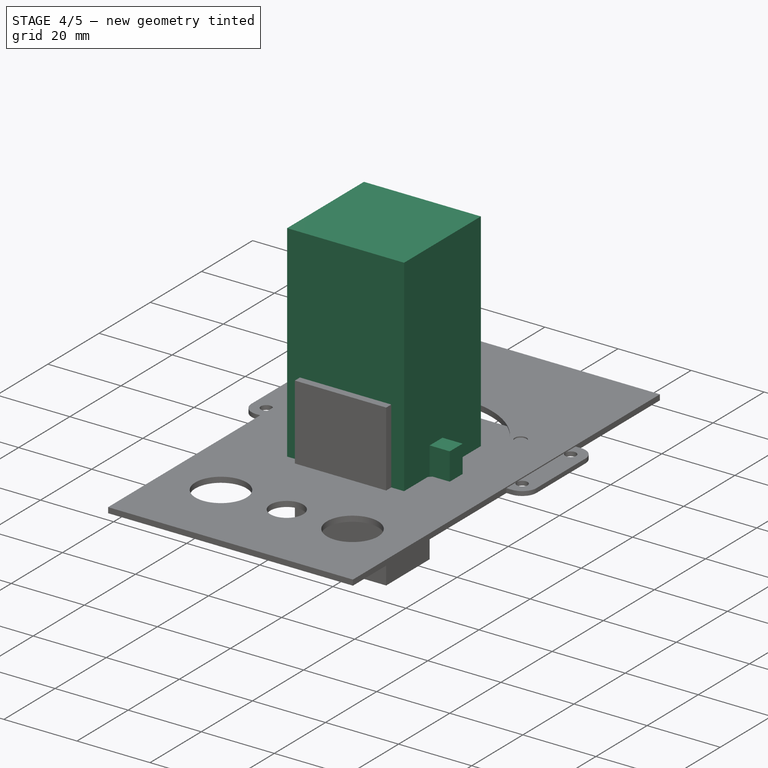
[diagram: stage 4 of 5 — iso view after this stage's code; geometry added in this stage tinted green]
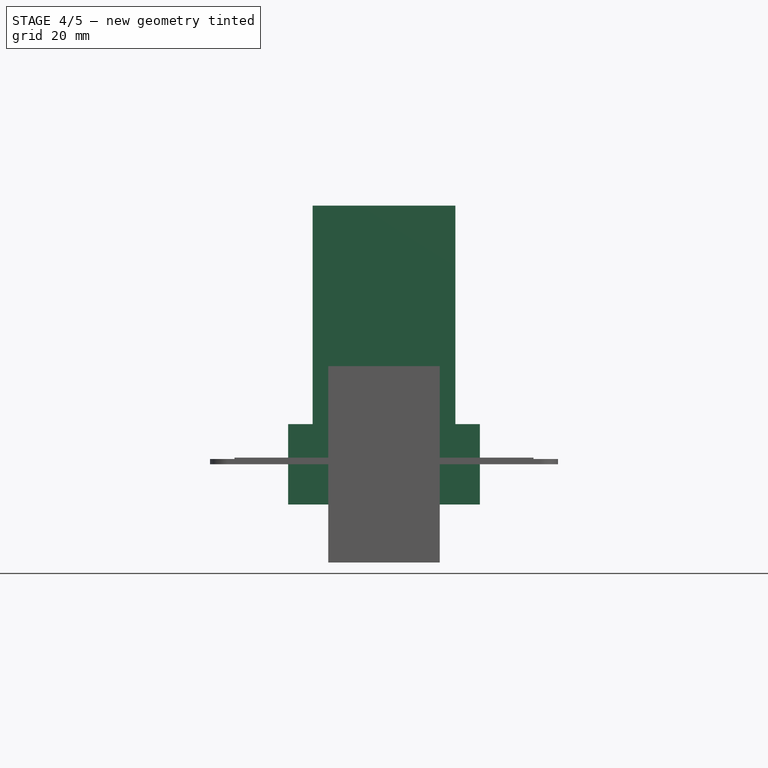
[diagram: stage 4 of 5 — front view after this stage's code; geometry added in this stage tinted green]
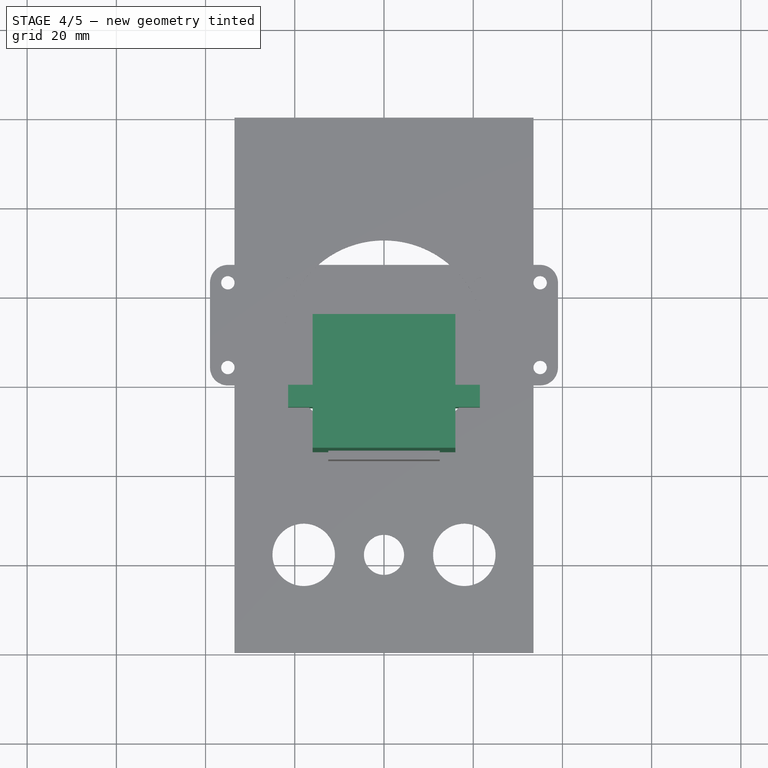
[diagram: stage 4 of 5 — top view after this stage's code; geometry added in this stage tinted green]
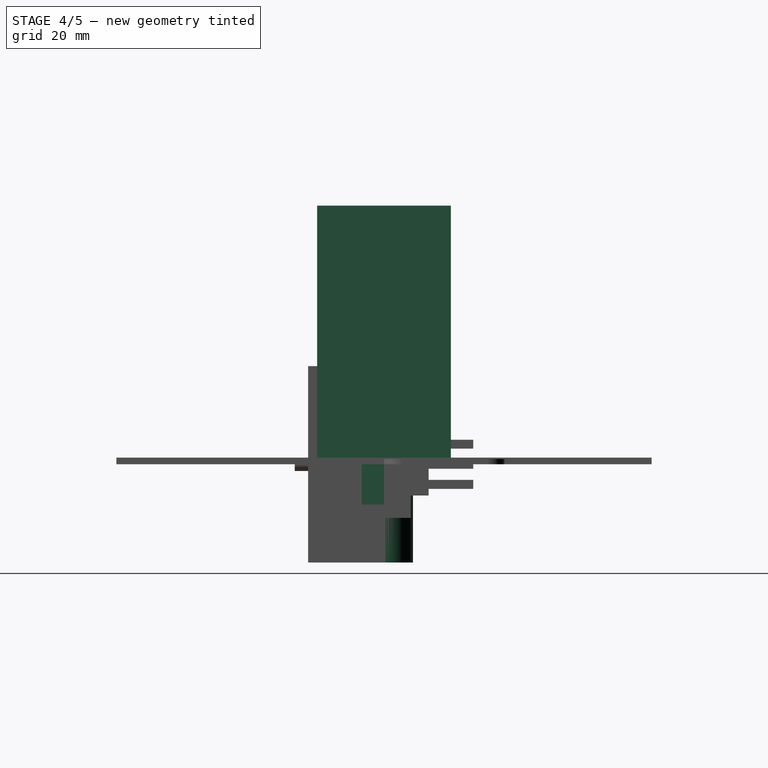
[diagram: stage 4 of 5 — right view after this stage's code; geometry added in this stage tinted green]
FEATURE [PartDesign::Body] Body002  label="BoutonPoussoirDR"
  Group = -> [Sketch006,Pad006,Sketch007,Pad007]
  Origin = -> Origin002
  Placement = pos=(18,0,22) rot=(1,0,0;1.5708rad)
  Tip = -> Pad007
FEATURE [Sketcher::SketchObject] Sketch008
  FullyConstrained = true
  MapMode = 5
  Support = -> [XY_Plane003]
  sketch-geometry (4):
    g0: LineSegment StartX=-16 StartY=15 StartZ=0 EndX=16 EndY=15 EndZ=0
    g1: LineSegment StartX=16 StartY=15 StartZ=0 EndX=16 EndY=-15 EndZ=0
    g2: LineSegment StartX=16 StartY=-15 StartZ=0 EndX=-16 EndY=-15 EndZ=0
    g3: LineSegment StartX=-16 StartY=-15 StartZ=0 EndX=-16 EndY=15 EndZ=0
  constraints (12):
    c: Coincident(g0,g1)
    c: Coincident(g1,g2)
    c: Coincident(g2,g3)
    c: Coincident(g3,g0)
    c: Horizontal(g0)
    c: Horizontal(g2)
    c: Vertical(g1)
    c: Vertical(g3)
    c: DistanceX(g0,g0) = 32
    c: DistanceY(g3,g3) = 30
    c: DistanceX(g0,g-1) = 16
    c: DistanceY(g-1,g0) = 15
FEATURE [PartDesign::Pad] Pad008
  Direction = (0,0,1)
  Length = 58
  Length2 = 10
  Profile = -> Sketch008
  ReferenceAxis = -> Sketch008 [N_Axis]
  Type = 0
FEATURE [PartDesign::Body] Body003  label="BoitierPile"
  Group = -> [Sketch008,Pad008]
  Origin = -> Origin003
  Placement = pos=(0,10,0) rot=(0,0,1;0rad)
  Tip = -> Pad008
FEATURE [Part::Feature] J_Extrusion_120mm
  shape: bbox 78 x 27 x 120 mm, 192 faces, 0 solids (baked)
FEATURE [Sketcher::SketchObject] Sketch009
  FullyConstrained = true
  MapMode = 5
  Placement = pos=(0,0,0) rot=(1,0,0;1.5708rad)
  Support = -> [XZ_Plane004]
  sketch-geometry (4):
    g0: LineSegment StartX=-21.5 StartY=9 StartZ=0 EndX=21.5 EndY=9 EndZ=0
    g1: LineSegment StartX=21.5 StartY=9 StartZ=0 EndX=21.5 EndY=-9 EndZ=0
    g2: LineSegment StartX=21.5 StartY=-9 StartZ=0 EndX=-21.5 EndY=-9 EndZ=0
    g3: LineSegment StartX=-21.5 StartY=-9 StartZ=0 EndX=-21.5 EndY=9 EndZ=0
  constraints (12):
    c: Coincident(g0,g1)
    c: Coincident(g1,g2)
    c: Coincident(g2,g3)
    c: Coincident(g3,g0)
    c: Horizontal(g0)
    c: Horizontal(g2)
    c: Vertical(g1)
    c: Vertical(g3)
    c: DistanceX(g0,g0) = 43
    c: DistanceX(g0,g-1) = 21.5
    c: DistanceY(g3,g3) = 18
    c: DistanceY(g-1,g0) = 9
FEATURE [PartDesign::Pad] Pad009
  Direction = (0,-1,2e-16)
  Length = 5
  Length2 = 10
  Placement = pos=(0,0,0) rot=(1,0,0;1.5708rad)
  Profile = -> Sketch009
  ReferenceAxis = -> Sketch009 [N_Axis]
  Type = 0
FEATURE [PartDesign::Body] Body004  label="ArduinoNano"
  Group = -> [Sketch009,Pad009]
  Origin = -> Origin004
  Placement = pos=(-4,17.5,67) rot=(0,0,1;3.14159rad)
  Tip = -> Pad009
FEATURE [Sketcher::SketchObject] Sketch010
  FullyConstrained = true
  MapMode = 5
  Support = -> [XY_Plane005]
  sketch-geometry (1):
    g0: Circle CenterX=0 CenterY=0 CenterZ=0 NormalX=0 NormalY=0 NormalZ=1 AngleXU=0 Radius=9
  constraints (2):
    c: Coincident(g0,g-1)
    c: Diameter(g0) = 18
FEATURE [PartDesign::Pad] Pad010
  Direction = (0,0,1)
  Length = 3
  Length2 = 10
  Profile = -> Sketch010
  ReferenceAxis = -> Sketch010 [N_Axis]
  Type = 0
FEATURE [Sketcher::SketchObject] Sketch011
  FullyConstrained = true
  MapMode = 5
  Placement = pos=(0,0,0) rot=(1,0,0;3.14159rad)
  Support = -> [Pad010]
  sketch-geometry (1):
    g0: Circle CenterX=0 CenterY=0 CenterZ=0 NormalX=0 NormalY=0 NormalZ=1 AngleXU=0 Radius=6.5
  constraints (2):
    c: Coincident(g0,g-1)
    c: Diameter(g0) = 13
FEATURE [PartDesign::Pad] Pad011
  BaseFeature = -> Pad010
  Direction = (0,0,-1)
  Length = 22
  Length2 = 10
  Profile = -> Sketch011
  ReferenceAxis = -> Sketch011 [N_Axis]
  Type = 0
FEATURE [PartDesign::Body] Body005  label="BoutonPoussoirGA"
  Group = -> [Sketch010,Pad010,Sketch011,Pad011]
  Origin = -> Origin005
  Placement = pos=(-18,0,22) rot=(1,0,0;1.5708rad)
  Tip = -> Pad011
FEATURE [Sketcher::SketchObject] Sketch022
  FullyConstrained = true
  MapMode = 5
  Placement = pos=(0,0,0) rot=(1,0,0;1.5708rad)
  Support = -> [XZ_Plane009]
  sketch-geometry (1):
    g0: Circle CenterX=0 CenterY=0 CenterZ=0 NormalX=0 NormalY=0 NormalZ=1 AngleXU=0 Radius=2.5
  constraints (2):
    c: Coincident(g0,g-1)
    c: Diameter(g0) = 5
FEATURE [PartDesign::Pad] Pad022
  Direction = (0,-1,2e-16)
  Length = 10
  Length2 = 10
  Placement = pos=(0,0,0) rot=(1,0,0;1.5708rad)
  Profile = -> Sketch022
  ReferenceAxis = -> Sketch022 [N_Axis]
  Type = 0
FEATURE [Sketcher::SketchObject] Sketch023
  FullyConstrained = true
  MapMode = 5
  Placement = pos=(0,-10,4.4e-15) rot=(1,0,0;1.5708rad)
  Support = -> [Pad022]
  sketch-geometry (1):
    g0: Circle CenterX=0 CenterY=0 CenterZ=0 NormalX=0 NormalY=0 NormalZ=1 AngleXU=0 Radius=1.5
  constraints (2):
    c: Coincident(g0,g-1)
    c: Diameter(g0) = 3
FEATURE [PartDesign::Pad] Pad023
  BaseFeature = -> Pad022
  Direction = (0,-1,2e-16)
  Length = 10
  Length2 = 10
  Placement = pos=(0,0,0) rot=(1,0,0;1.5708rad)
  Profile = -> Sketch023
  ReferenceAxis = -> Sketch023 [N_Axis]
  Type = 0
FEATURE [Sketcher::SketchObject] Sketch024
  FullyConstrained = true
  MapMode = 5
  Placement = pos=(0,0,0) rot=(-1,0,0;1.5708rad)
  Support = -> [Pad023]
  sketch-geometry (4):
    g0: LineSegment StartX=-4 StartY=7 StartZ=0 EndX=4 EndY=7 EndZ=0
    g1: LineSegment StartX=4 StartY=7 StartZ=0 EndX=4 EndY=-7 EndZ=0
    g2: LineSegment StartX=4 StartY=-7 StartZ=0 EndX=-4 EndY=-7 EndZ=0
    g3: LineSegment StartX=-4 StartY=-7 StartZ=0 EndX=-4 EndY=7 EndZ=0
  constraints (12):
    c: Coincident(g0,g1)
    c: Coincident(g1,g2)
    c: Coincident(g2,g3)
    c: Coincident(g3,g0)
    c: Horizontal(g0)
    c: Horizontal(g2)
    c: Vertical(g1)
    c: Vertical(g3)
    c: DistanceY(g1,g1) = 14
    c: DistanceX(g0,g0) = 8
    c: DistanceX(g0,g-1) = 4
    c: DistanceY(g-1,g0) = 7
FEATURE [PartDesign::Pad] Pad024
  BaseFeature = -> Pad023
  Direction = (0,1,-2e-16)
  Length = 10
  Length2 = 10
  Placement = pos=(0,0,0) rot=(1,0,0;1.5708rad)
  Profile = -> Sketch024
  ReferenceAxis = -> Sketch024 [N_Axis]
  Type = 0
FEATURE [Sketcher::SketchObject] Sketch025
  FullyConstrained = true
  MapMode = 5
  Placement = pos=(0,10,-4.4e-15) rot=(-1,0,0;1.5708rad)
  Support = -> [Pad024]
  sketch-geometry (12):
    g0: LineSegment StartX=-2.5 StartY=5.5 StartZ=0 EndX=2.5 EndY=5.5 EndZ=0
    g1: LineSegment StartX=2.5 StartY=5.5 StartZ=0 EndX=2.5 EndY=3.5 EndZ=0
    g2: LineSegment StartX=2.5 StartY=3.5 StartZ=0 EndX=-2.5 EndY=3.5 EndZ=0
    g3: LineSegment StartX=-2.5 StartY=3.5 StartZ=0 EndX=-2.5 EndY=5.5 EndZ=0
    g4: LineSegment StartX=-2.5 StartY=1 StartZ=0 EndX=2.5 EndY=1 EndZ=0
    g5: LineSegment StartX=2.5 StartY=1 StartZ=0 EndX=2.5 EndY=-1 EndZ=0
    g6: LineSegment StartX=2.5 StartY=-1 StartZ=0 EndX=-2.5 EndY=-1 EndZ=0
    g7: LineSegment StartX=-2.5 StartY=-1 StartZ=0 EndX=-2.5 EndY=1 EndZ=0
    g8: LineSegment StartX=-2.5 StartY=-3.5 StartZ=0 EndX=2.5 EndY=-3.5 EndZ=0
    g9: LineSegment StartX=2.5 StartY=-3.5 StartZ=0 EndX=2.5 EndY=-5.5 EndZ=0
    g10: LineSegment StartX=2.5 StartY=-5.5 StartZ=0 EndX=-2.5 EndY=-5.5 EndZ=0
    g11: LineSegment StartX=-2.5 StartY=-5.5 StartZ=0 EndX=-2.5 EndY=-3.5 EndZ=0
  constraints (36):
    c: Coincident(g0,g1)
    c: Coincident(g1,g2)
    c: Coincident(g2,g3)
    c: Coincident(g3,g0)
    c: Horizontal(g0)
    c: Horizontal(g2)
    c: Vertical(g1)
    c: Vertical(g3)
    c: Coincident(g4,g5)
    c: Coincident(g5,g6)
    c: Coincident(g6,g7)
    c: Coincident(g7,g4)
    c: Horizontal(g4)
    c: Horizontal(g6)
    c: Vertical(g5)
    c: Vertical(g7)
    c: Coincident(g8,g9)
    c: Coincident(g9,g10)
    c: Coincident(g10,g11)
    c: Coincident(g11,g8)
    c: Horizontal(g8)
    c: Horizontal(g10)
    c: Vertical(g9)
    c: Vertical(g11)
    c: DistanceX(g0,g0) = 5
    c: DistanceX(g4,g4) = 5
    c: DistanceX(g8,g8) = 5
    c: DistanceY(g1,g1) = 2
    c: DistanceY(g5,g5) = 2
    c: DistanceY(g9,g9) = 2
    c: DistanceX(g1,g4) = 0
    c: DistanceX(g5,g8) = 0
    c: DistanceY(g4,g1) = 2.5
    c: DistanceY(g8,g5) = 2.5
    c: DistanceY(g5,g-1) = 1
    c: DistanceX(g-1,g5) = 2.5
FEATURE [PartDesign::Pad] Pad025
  BaseFeature = -> Pad024
  Direction = (0,1,-2e-16)
  Length = 10
  Length2 = 10
  Placement = pos=(0,0,0) rot=(1,0,0;1.5708rad)
  Profile = -> Sketch025
  ReferenceAxis = -> Sketch025 [N_Axis]
  Type = 0
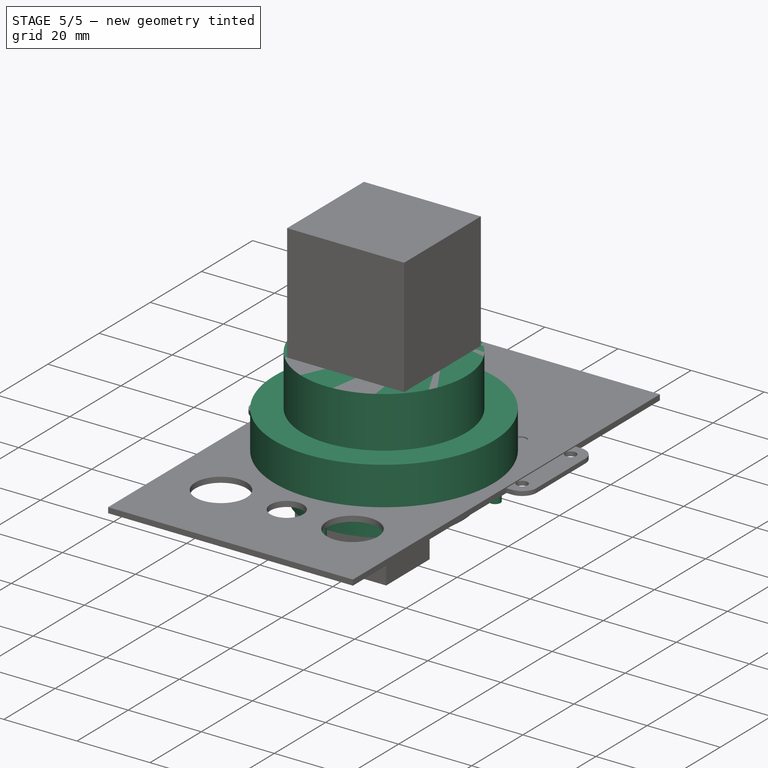
[diagram: stage 5 of 5 — iso view after this stage's code; geometry added in this stage tinted green]
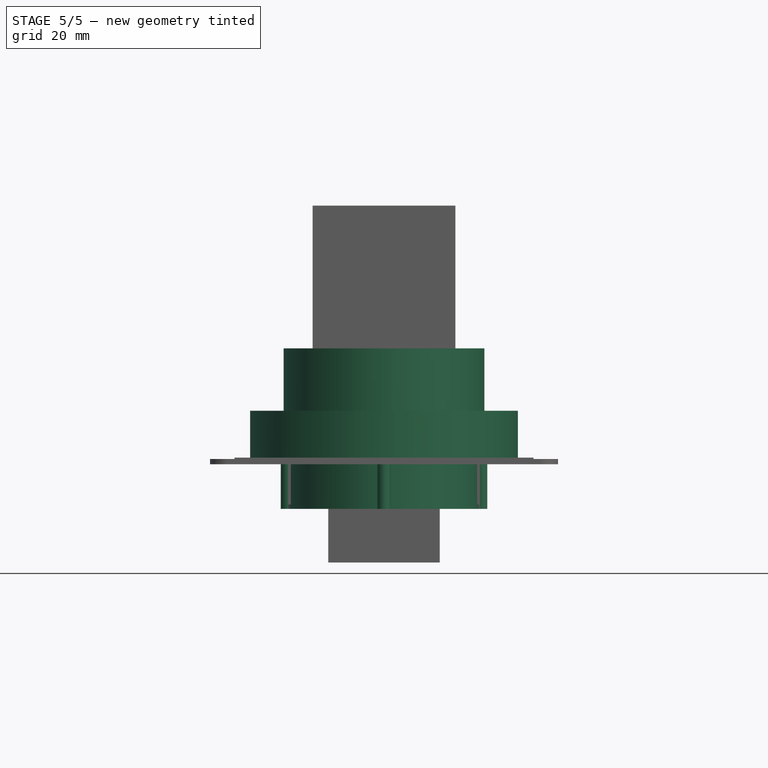
[diagram: stage 5 of 5 — front view after this stage's code; geometry added in this stage tinted green]
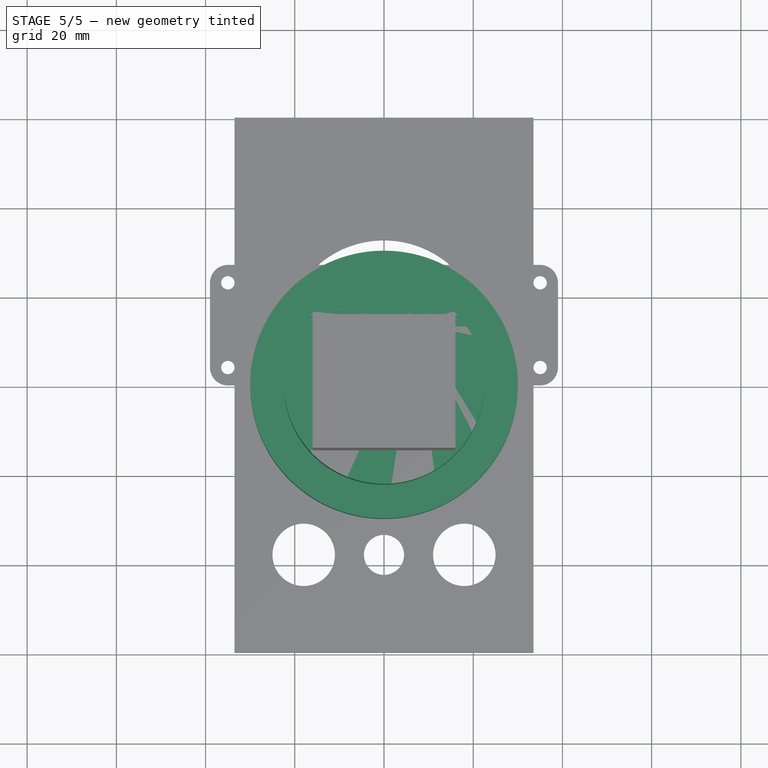
[diagram: stage 5 of 5 — top view after this stage's code; geometry added in this stage tinted green]
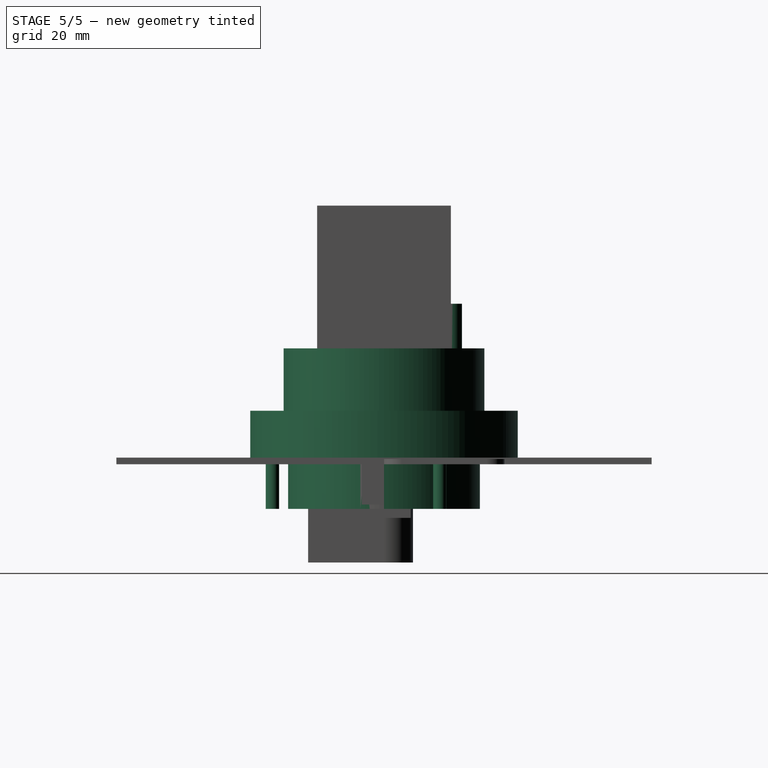
[diagram: stage 5 of 5 — right view after this stage's code; geometry added in this stage tinted green]
FEATURE [Sketcher::SketchObject] Sketch001
  FullyConstrained = true
  MapMode = 5
  Support = -> [XY_Plane001]
  sketch-geometry (1):
    g0: Circle CenterX=0 CenterY=0 CenterZ=0 NormalX=0 NormalY=0 NormalZ=1 AngleXU=0 Radius=30
  constraints (2):
    c: Coincident(g0,g-1)
    c: Diameter(g0) = 60
FEATURE [PartDesign::Pad] Pad001
  Direction = (0,0,1)
  Length = 12
  Length2 = 10
  Profile = -> Sketch001
  ReferenceAxis = -> Sketch001 [N_Axis]
  Type = 0
FEATURE [Sketcher::SketchObject] Sketch002
  FullyConstrained = true
  MapMode = 5
  Placement = pos=(0,0,12) rot=(0,0,1;0rad)
  Support = -> [Pad001]
  sketch-geometry (1):
    g0: Circle CenterX=0 CenterY=0 CenterZ=0 NormalX=0 NormalY=0 NormalZ=1 AngleXU=0 Radius=22.5
  constraints (2):
    c: Coincident(g0,g-1)
    c: Diameter(g0) = 45
FEATURE [PartDesign::Pad] Pad002
  BaseFeature = -> Pad001
  Direction = (0,0,1)
  Length = 14
  Length2 = 10
  Profile = -> Sketch002
  ReferenceAxis = -> Sketch002 [N_Axis]
  Type = 0
FEATURE [Sketcher::SketchObject] Sketch003
  FullyConstrained = true
  MapMode = 5
  Placement = pos=(0,0,0) rot=(1,0,0;3.14159rad)
  Support = -> [Pad002]
  sketch-geometry (1):
    g0: Circle CenterX=0 CenterY=0 CenterZ=0 NormalX=0 NormalY=0 NormalZ=1 AngleXU=0 Radius=21.5
  constraints (2):
    c: Coincident(g0,g-1)
    c: Diameter(g0) = 43
FEATURE [PartDesign::Pad] Pad003
  BaseFeature = -> Pad002
  Direction = (0,0,-1)
  Length = 10
  Length2 = 10
  Profile = -> Sketch003
  ReferenceAxis = -> Sketch003 [N_Axis]
  Type = 0
FEATURE [Sketcher::SketchObject] Sketch004
  FullyConstrained = true
  MapMode = 5
  Placement = pos=(0,0,0) rot=(1,0,0;3.14159rad)
  Support = -> [Pad003]
  sketch-geometry (3):
    g0: Circle CenterX=0 CenterY=25 CenterZ=0 NormalX=0 NormalY=0 NormalZ=1 AngleXU=0 Radius=1.5
    g1: Circle CenterX=21.65 CenterY=-12.5 CenterZ=0 NormalX=0 NormalY=0 NormalZ=1 AngleXU=0 Radius=1.5
    g2: Circle CenterX=-21.65 CenterY=-12.5 CenterZ=0 NormalX=0 NormalY=0 NormalZ=1 AngleXU=0 Radius=1.5
  constraints (9):
    c: PointOnObject(g0,g-2)
    c: Diameter(g0) = 3
    c: DistanceY(g-1,g0) = 25
    c: Diameter(g1) = 3
    c: DistanceX(g-1,g1) = 21.65
    c: DistanceY(g1,g-1) = 12.5
    c: Diameter(g2) = 3
    c: DistanceY(g2,g-1) = 12.5
    c: DistanceX(g2,g-1) = 21.65
FEATURE [PartDesign::Pad] Pad004
  BaseFeature = -> Pad003
  Direction = (0,0,-1)
  Length = 10
  Length2 = 10
  Profile = -> Sketch004
  ReferenceAxis = -> Sketch004 [N_Axis]
  Type = 0
FEATURE [Sketcher::SketchObject] Sketch005
  FullyConstrained = true
  MapMode = 5
  Placement = pos=(0,0,26) rot=(0,0,1;0rad)
  Support = -> [Pad004]
  sketch-geometry (1):
    g0: Circle CenterX=8 CenterY=15 CenterZ=0 NormalX=0 NormalY=0 NormalZ=1 AngleXU=0 Radius=2.5
  constraints (3):
    c: Diameter(g0) = 5
    c: DistanceY(g-1,g0) = 15
    c: DistanceX(g-1,g0) = 8
FEATURE [PartDesign::Pad] Pad005
  BaseFeature = -> Pad004
  Direction = (0,0,1)
  Length = 10
  Length2 = 10
  Profile = -> Sketch005
  ReferenceAxis = -> Sketch005 [N_Axis]
  Type = 0
FEATURE [PartDesign::Body] Body001  label="CNC_Encoder"
  Group = -> [Sketch001,Pad001,Sketch002,Pad002,Sketch003,Pad003,Sketch004,Pad004,Sketch005,Pad005]
  Origin = -> Origin001
  Placement = pos=(0,0,70) rot=(1,0,0;1.5708rad)
  Tip = -> Pad005
FEATURE [Sketcher::SketchObject] Sketch006
  FullyConstrained = true
  MapMode = 5
  Support = -> [XY_Plane002]
  sketch-geometry (1):
    g0: Circle CenterX=0 CenterY=0 CenterZ=0 NormalX=0 NormalY=0 NormalZ=1 AngleXU=0 Radius=9
  constraints (2):
    c: Coincident(g0,g-1)
    c: Diameter(g0) = 18
FEATURE [PartDesign::Pad] Pad006
  Direction = (0,0,1)
  Length = 3
  Length2 = 10
  Profile = -> Sketch006
  ReferenceAxis = -> Sketch006 [N_Axis]
  Type = 0
FEATURE [Sketcher::SketchObject] Sketch007
  FullyConstrained = true
  MapMode = 5
  Placement = pos=(0,0,0) rot=(1,0,0;3.14159rad)
  Support = -> [Pad006]
  sketch-geometry (1):
    g0: Circle CenterX=0 CenterY=0 CenterZ=0 NormalX=0 NormalY=0 NormalZ=1 AngleXU=0 Radius=6.5
  constraints (2):
    c: Coincident(g0,g-1)
    c: Diameter(g0) = 13
FEATURE [PartDesign::Pad] Pad007
  BaseFeature = -> Pad006
  Direction = (0,0,-1)
  Length = 22
  Length2 = 10
  Profile = -> Sketch007
  ReferenceAxis = -> Sketch007 [N_Axis]
  Type = 0
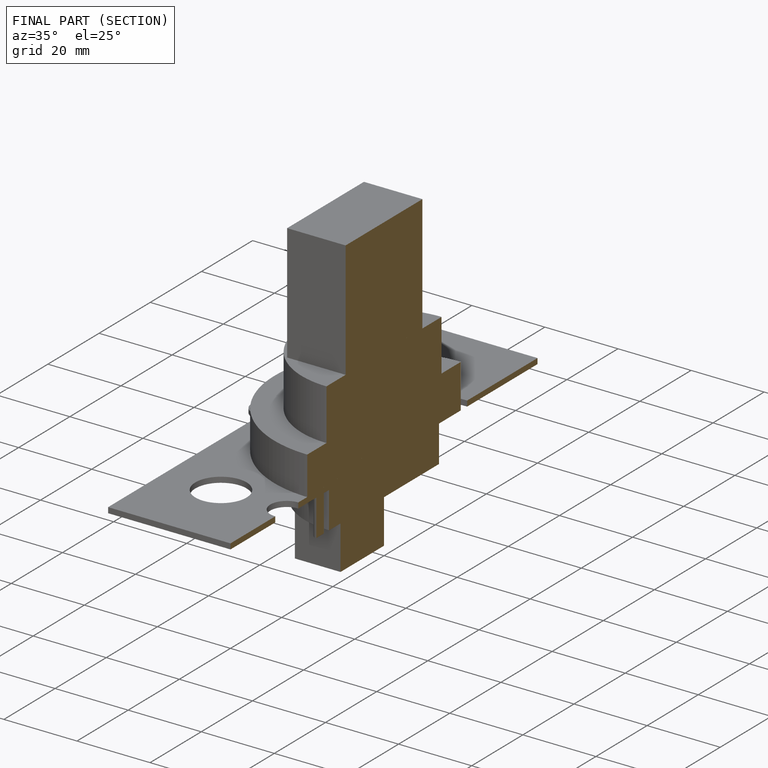
[diagram: finished part — half-section view (interior)]
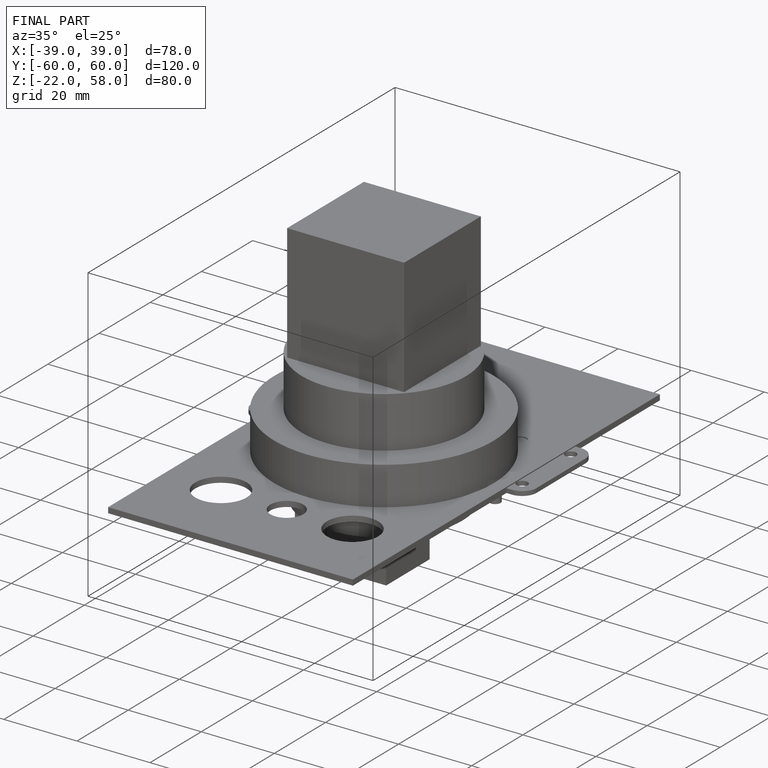
[diagram: finished part — iso view with bounding-box wireframe]
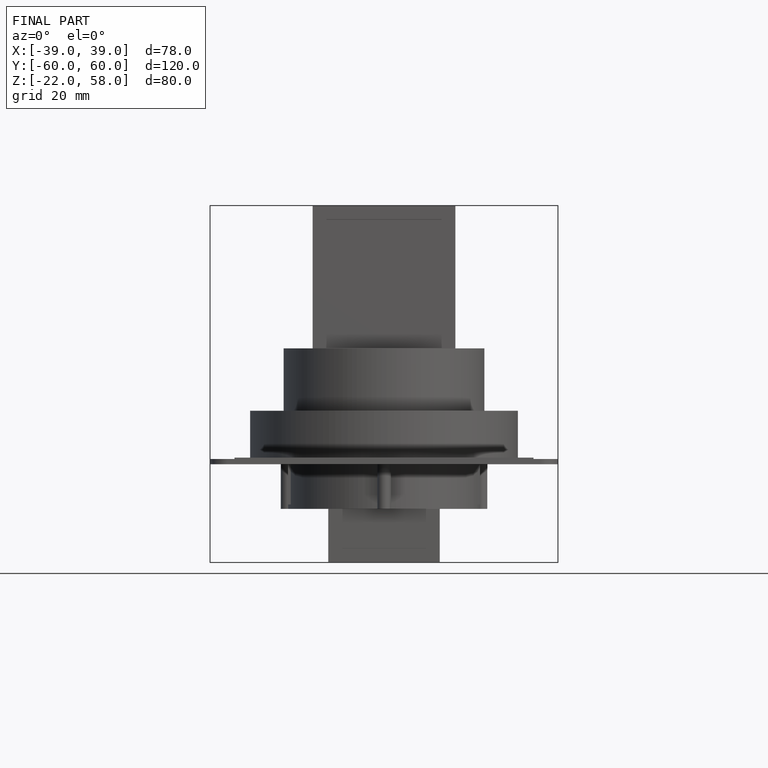
[diagram: finished part — front view with bounding-box wireframe]
